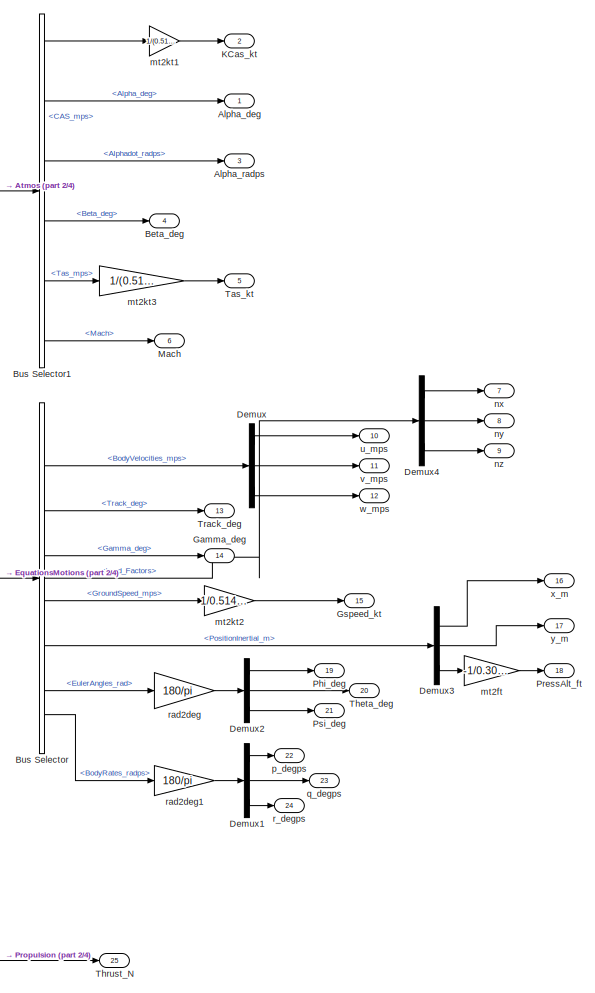
[diagram: root canvas - part 1/4, right side, full height]
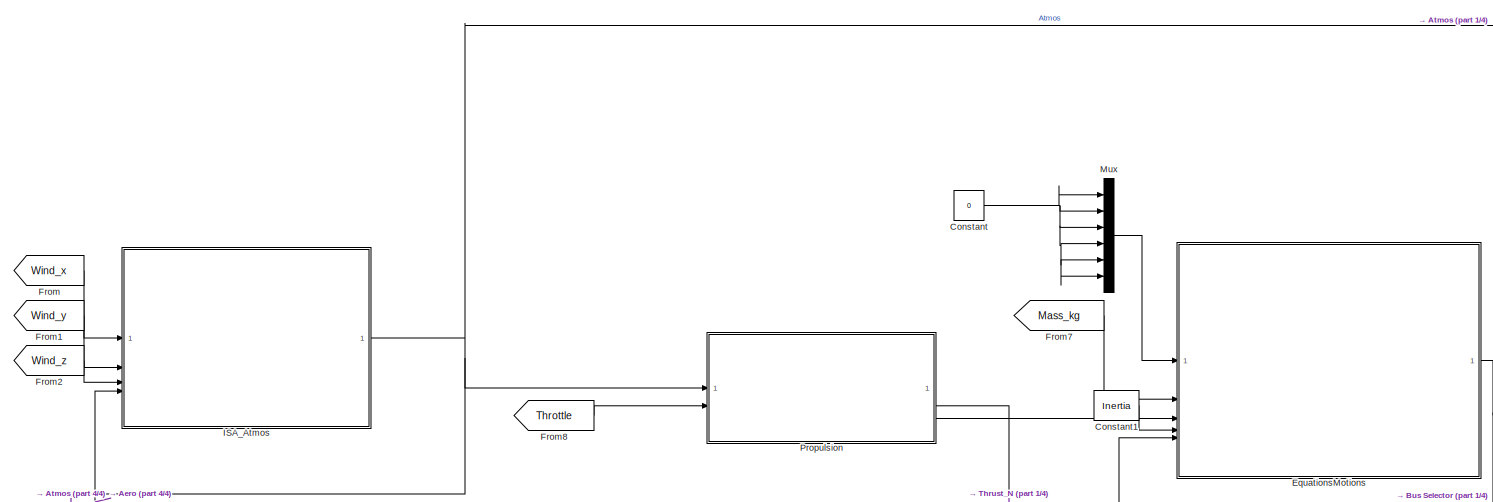
[diagram: root canvas - part 2/4, central region]
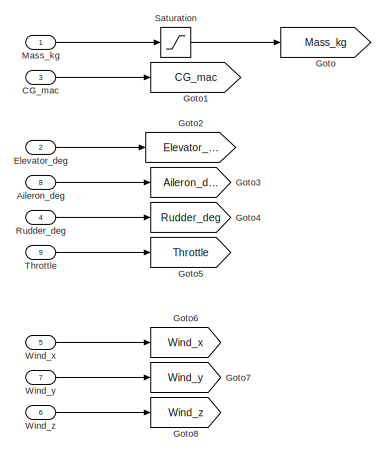
[diagram: root canvas - part 3/4, middle left region]
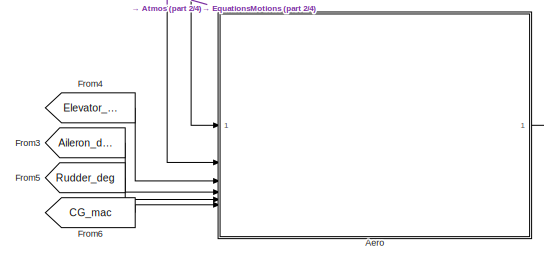
[diagram: root canvas - part 4/4, bottom left region]
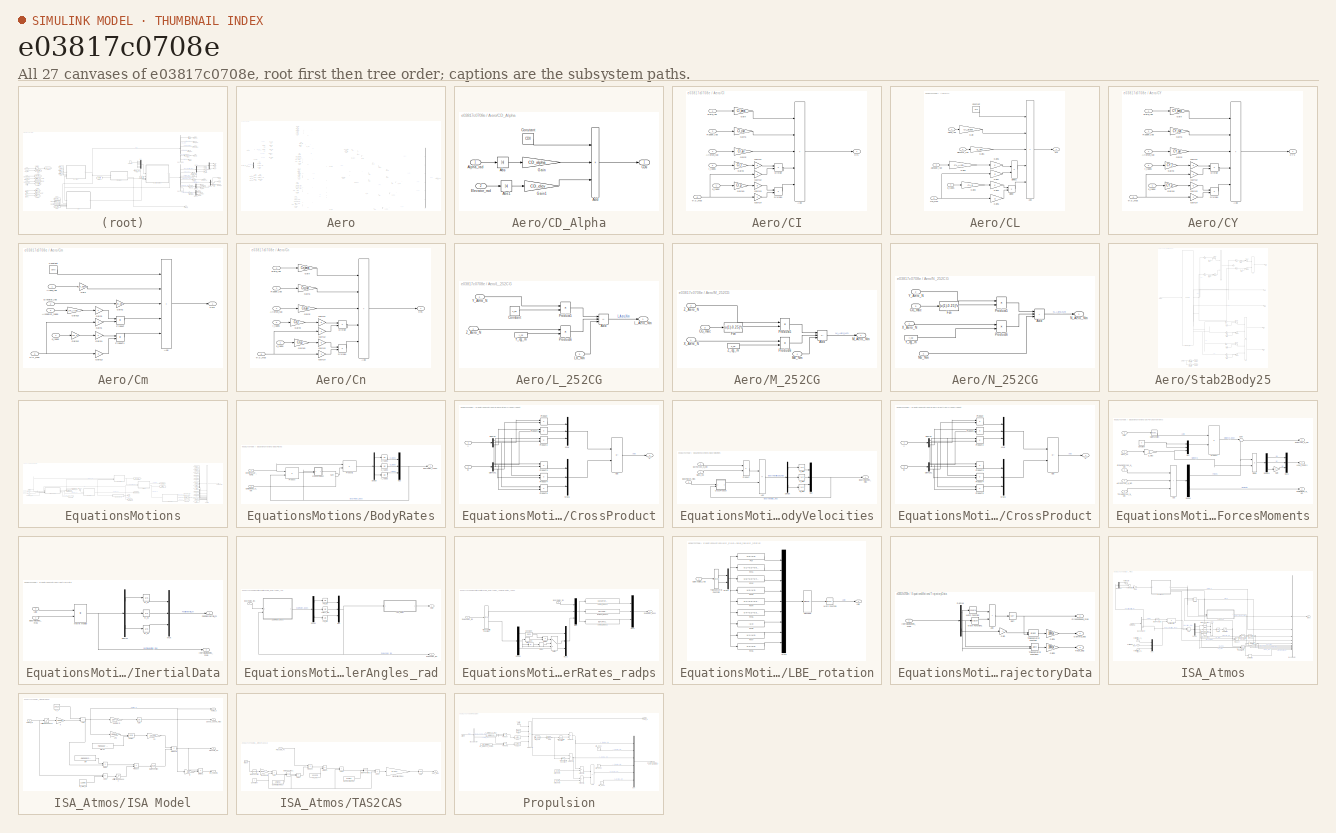
[diagram: thumbnail index - all 27 canvases of the model, root first then tree order]
MODEL slx_e03817c0708e
KIND model
CONFIG AbsTol = auto
CONFIG EnableMultiTasking = off
CONFIG FixedStep = 0.01
CONFIG MaxStep = auto
CONFIG MinStep = auto
CONFIG RelTol = 1e-3
CONFIG SampleTimeConstraint = Unconstrained
CONFIG SolverName = ode1
CONFIG StartTime = 0.0
CONFIG StopTime = 10.0
WORKSPACE source: mxarray member
WORKSPACE op_trim1: opcond.OperatingReport (value not decoded)
WORKSPACE op_trim4: opcond.OperatingReport (value not decoded)
WORKSPACE u_mps = 0
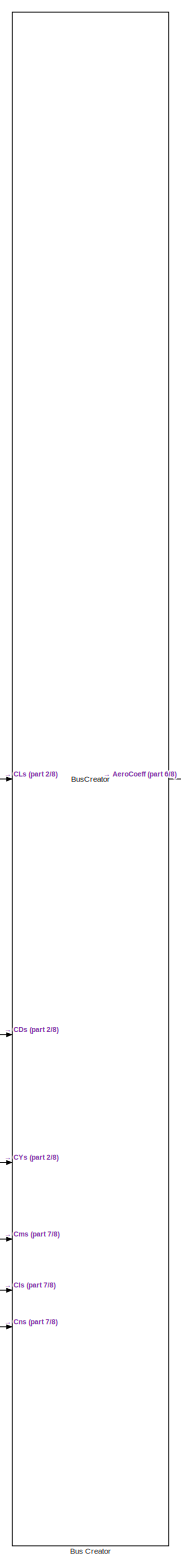
[diagram: Aero - part 1/8, center side, full height]
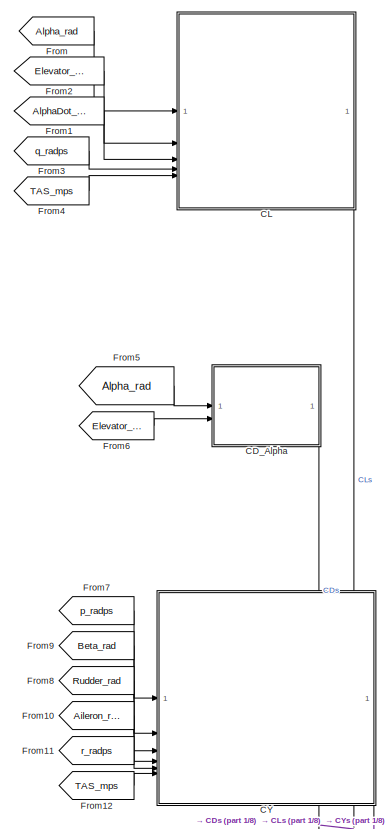
[diagram: Aero - part 2/8, top left region]
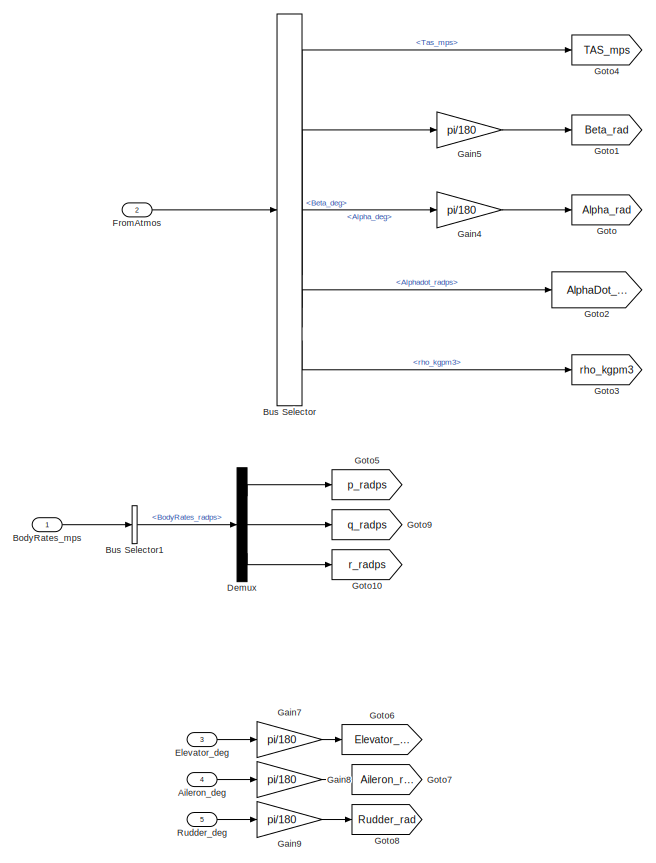
[diagram: Aero - part 3/8, middle left region]
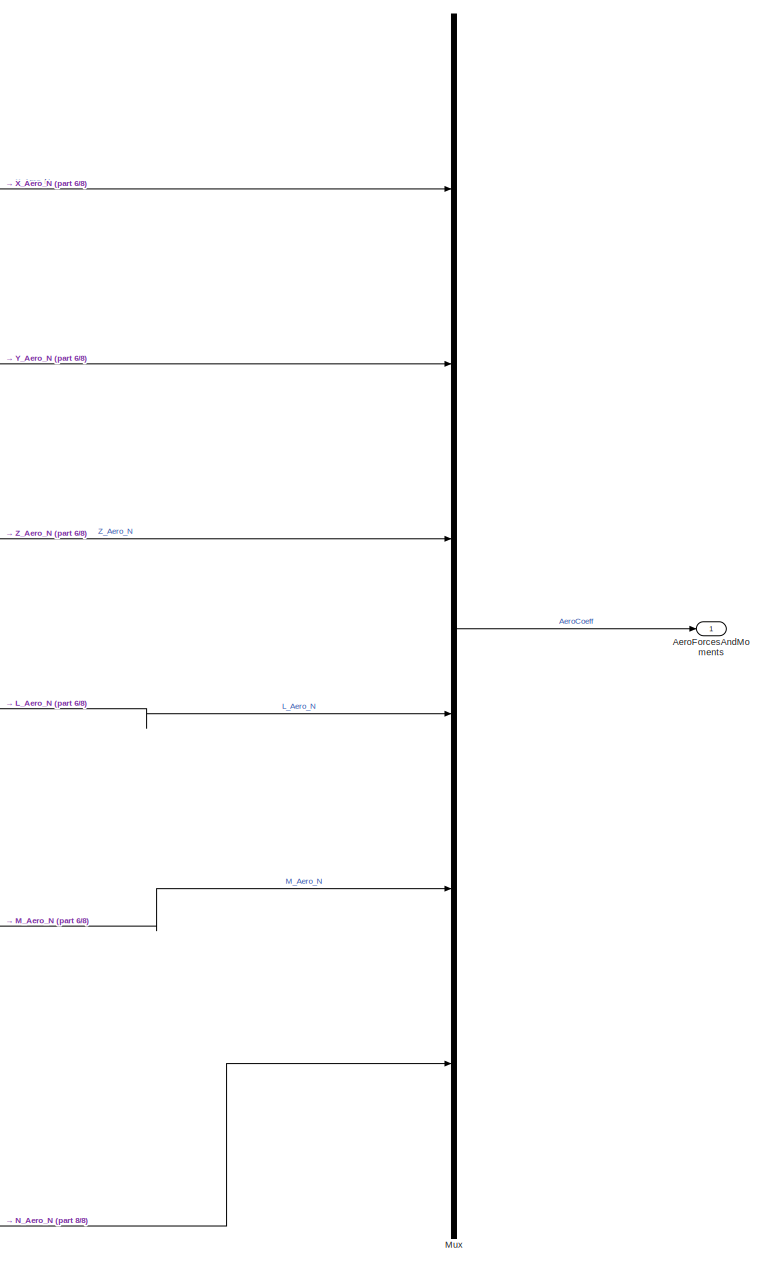
[diagram: Aero - part 4/8, middle right region]
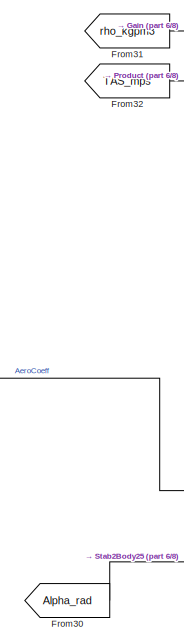
[diagram: Aero - part 5/8, central region]
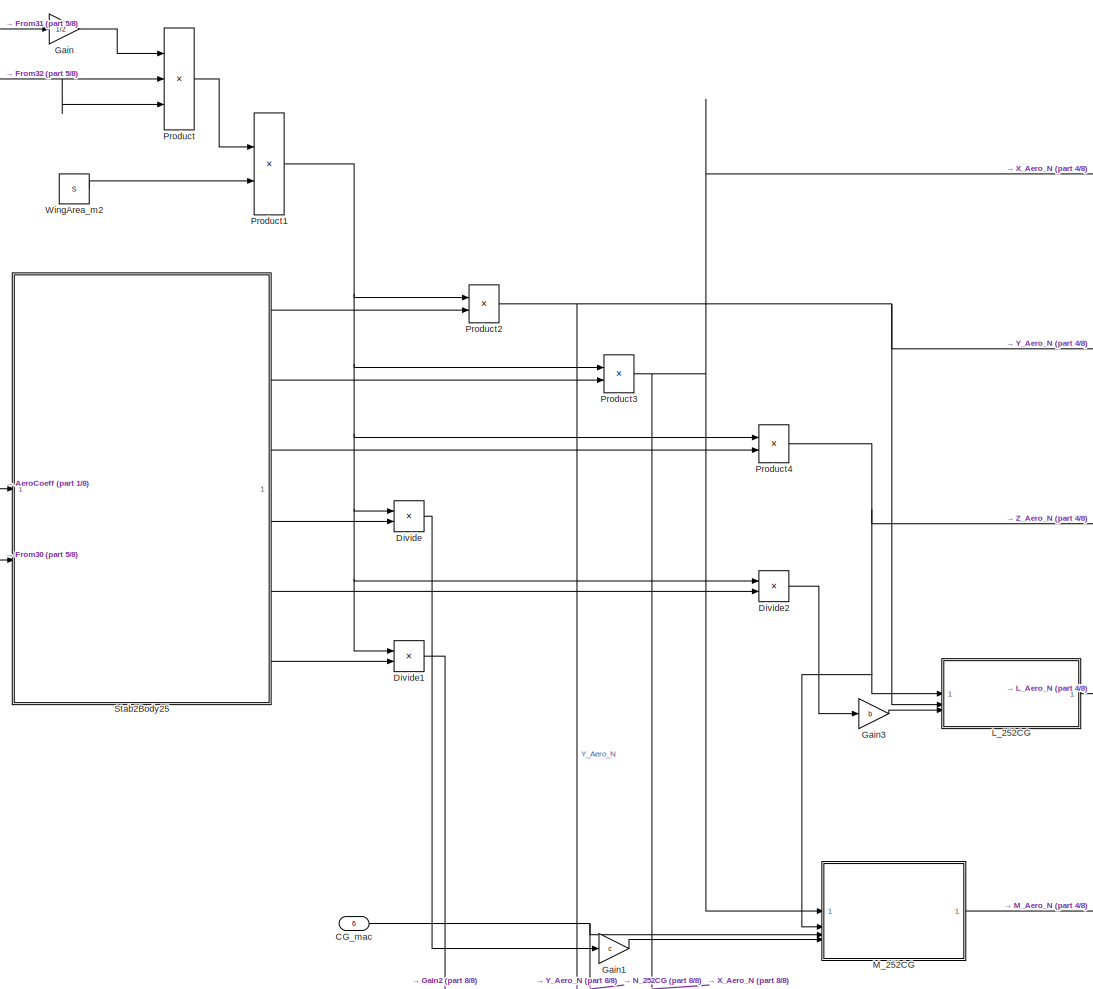
[diagram: Aero - part 6/8, middle right region]
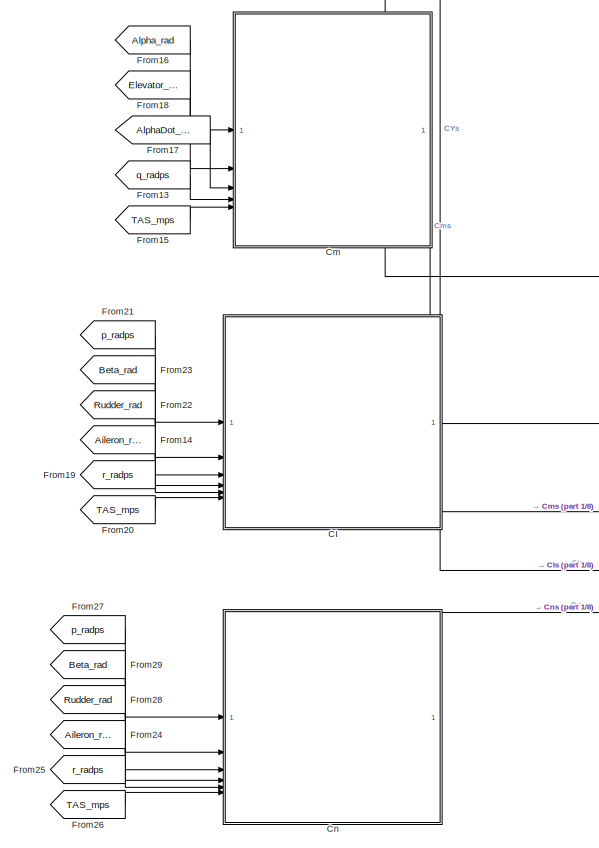
[diagram: Aero - part 7/8, bottom left region]
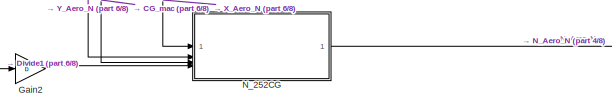
[diagram: Aero - part 8/8, bottom right region]
BLOCK [SubSystem] Aero
BLOCK [Outport] Aero/AeroForcesAndMoments
BLOCK [Inport] Aero/Aileron_deg
  Port = 4
BLOCK [Inport] Aero/BodyRates_mps
BLOCK [BusCreator] Aero/Bus Creator
  DisplayOption = bar
  InheritFromInputs = on
  Inputs = 6
BLOCK [BusSelector] Aero/Bus Selector
  OutputSignals = Tas_mps,Beta_deg,Alpha_deg,Alphadot_radps,rho_kgpm3
BLOCK [BusSelector] Aero/Bus Selector1
  OutputSignals = BodyRates_radps
BLOCK [SubSystem] Aero/CD_Alpha
BLOCK [Abs] Aero/CD_Alpha/Abs
  SaturateOnIntegerOverflow = off
BLOCK [Abs] Aero/CD_Alpha/Abs1
  SaturateOnIntegerOverflow = off
BLOCK [Sum] Aero/CD_Alpha/Add
  IconShape = rectangular
  Inputs = +++
BLOCK [Inport] Aero/CD_Alpha/Alpha_rad
BLOCK [Outport] Aero/CD_Alpha/CDs
BLOCK [Constant] Aero/CD_Alpha/Constant
  Value = CD0
BLOCK [Inport] Aero/CD_Alpha/Elevator_rad
  Port = 2
BLOCK [Gain] Aero/CD_Alpha/Gain
  Gain = CD_alpha
BLOCK [Gain] Aero/CD_Alpha/Gain1
  Gain = CD_elev
BLOCK [Inport] Aero/CG_mac
  Port = 6
BLOCK [SubSystem] Aero/CI
BLOCK [Sum] Aero/CI/Add
  IconShape = rectangular
  Inputs = +++++
BLOCK [Inport] Aero/CI/Aileron_rad
  Port = 4
BLOCK [Inport] Aero/CI/Beta_rad
  Port = 2
BLOCK [Outport] Aero/CI/CIs
BLOCK [Product] Aero/CI/Divide
  Inputs = */
BLOCK [Product] Aero/CI/Divide1
  Inputs = */
BLOCK [Gain] Aero/CI/Gain
  Gain = Cl_beta
BLOCK [Gain] Aero/CI/Gain1
  Gain = Cl_rud
BLOCK [Gain] Aero/CI/Gain10
  Gain = Cl_p
BLOCK [Gain] Aero/CI/Gain11
  Gain = b
BLOCK [Gain] Aero/CI/Gain12
  Gain = 2
BLOCK [Gain] Aero/CI/Gain13
  Gain = b
BLOCK [Gain] Aero/CI/Gain14
  Gain = 2
BLOCK [Gain] Aero/CI/Gain2
  Gain = Cl_ail
BLOCK [Gain] Aero/CI/Gain3
  Gain = Cl_r
BLOCK [Inport] Aero/CI/Rudder_rad
  Port = 3
BLOCK [Inport] Aero/CI/TAS_mps
  Port = 6
BLOCK [Inport] Aero/CI/p_radps
BLOCK [Inport] Aero/CI/r_radps
  Port = 5
BLOCK [SubSystem] Aero/CL
BLOCK [Sum] Aero/CL/Add
  IconShape = rectangular
  Inputs = +++++
BLOCK [Inport] Aero/CL/AlphaDot_rad
  Port = 3
BLOCK [Inport] Aero/CL/Alpha_rad
BLOCK [Outport] Aero/CL/CLs
BLOCK [Constant] Aero/CL/Constant
  Value = CL0
BLOCK [Product] Aero/CL/Divide
  Inputs = */
BLOCK [Product] Aero/CL/Divide1
  Inputs = */
BLOCK [Inport] Aero/CL/Elevator_rad
  Port = 2
BLOCK [Gain] Aero/CL/Gain
  Gain = CL_alpha
BLOCK [Gain] Aero/CL/Gain1
  Gain = CL_elev
BLOCK [Gain] Aero/CL/Gain2
  Gain = CL_AlphaDot
BLOCK [Gain] Aero/CL/Gain3
  Gain = CL_q
BLOCK [Gain] Aero/CL/Gain4
  Gain = c
BLOCK [Gain] Aero/CL/Gain5
  Gain = 2
BLOCK [Gain] Aero/CL/Gain6
  Gain = c
BLOCK [Gain] Aero/CL/Gain7
  Gain = 2
BLOCK [Inport] Aero/CL/TAS_mps
  Port = 5
BLOCK [Inport] Aero/CL/q_radps
  Port = 4
BLOCK [SubSystem] Aero/CY
BLOCK [Sum] Aero/CY/Add
  IconShape = rectangular
  Inputs = +++++
BLOCK [Inport] Aero/CY/Aileron_rad
  Port = 4
BLOCK [Inport] Aero/CY/Beta_rad
  Port = 2
BLOCK [Outport] Aero/CY/CYs
BLOCK [Product] Aero/CY/Divide
  Inputs = */
BLOCK [Product] Aero/CY/Divide1
  Inputs = */
BLOCK [Gain] Aero/CY/Gain
  Gain = CY_beta
BLOCK [Gain] Aero/CY/Gain1
  Gain = CY_rud
BLOCK [Gain] Aero/CY/Gain10
  Gain = CY_p
BLOCK [Gain] Aero/CY/Gain11
  Gain = b
BLOCK [Gain] Aero/CY/Gain12
  Gain = 2
BLOCK [Gain] Aero/CY/Gain13
  Gain = b
BLOCK [Gain] Aero/CY/Gain14
  Gain = 2
BLOCK [Gain] Aero/CY/Gain2
  Gain = CY_ail
BLOCK [Gain] Aero/CY/Gain3
  Gain = CY_r
BLOCK [Inport] Aero/CY/Rudder_rad
  Port = 3
BLOCK [Inport] Aero/CY/TAS_mps
  Port = 6
BLOCK [Inport] Aero/CY/p_radps
BLOCK [Inport] Aero/CY/r_radps
  Port = 5
BLOCK [SubSystem] Aero/Cm
BLOCK [Sum] Aero/Cm/Add
  IconShape = rectangular
  Inputs = +++++
BLOCK [Inport] Aero/Cm/AlphaDot_radps
  Port = 3
BLOCK [Inport] Aero/Cm/Alpha_rad
BLOCK [Outport] Aero/Cm/Cms
BLOCK [Constant] Aero/Cm/Constant
  Value = Cm0
BLOCK [Inport] Aero/Cm/Elevator_rad
  Port = 2
BLOCK [Gain] Aero/Cm/Gain
  Gain = Cm_alpha
BLOCK [Gain] Aero/Cm/Gain1
  Gain = 2
BLOCK [Gain] Aero/Cm/Gain10
  Gain = Cm_AlphaDot
BLOCK [Gain] Aero/Cm/Gain11
  Gain = c
BLOCK [Gain] Aero/Cm/Gain12
  Gain = Cm_q
BLOCK [Gain] Aero/Cm/Gain13
  Gain = 2
BLOCK [Gain] Aero/Cm/Gain2
  Gain = Cm_elev
BLOCK [Gain] Aero/Cm/Gain3
  Gain = c
BLOCK [Product] Aero/Cm/Product
  Inputs = */
BLOCK [Product] Aero/Cm/Product1
  Inputs = */
BLOCK [Inport] Aero/Cm/TAS_mps
  Port = 5
BLOCK [Inport] Aero/Cm/q_radps
  Port = 4
BLOCK [SubSystem] Aero/Cn
BLOCK [Sum] Aero/Cn/Add
  IconShape = rectangular
  Inputs = +++++
BLOCK [Inport] Aero/Cn/Aileron_rad
  Port = 4
BLOCK [Inport] Aero/Cn/Beta_rad
  Port = 2
BLOCK [Outport] Aero/Cn/Cns
BLOCK [Product] Aero/Cn/Divide
  Inputs = */
BLOCK [Product] Aero/Cn/Divide1
  Inputs = */
BLOCK [Gain] Aero/Cn/Gain
  Gain = Cn_beta
BLOCK [Gain] Aero/Cn/Gain1
  Gain = Cn_rud
BLOCK [Gain] Aero/Cn/Gain10
  Gain = Cn_p
BLOCK [Gain] Aero/Cn/Gain11
  Gain = b
BLOCK [Gain] Aero/Cn/Gain12
  Gain = 2
BLOCK [Gain] Aero/Cn/Gain13
  Gain = b
BLOCK [Gain] Aero/Cn/Gain14
  Gain = 2
BLOCK [Gain] Aero/Cn/Gain2
  Gain = Cn_ail
BLOCK [Gain] Aero/Cn/Gain3
  Gain = Cn_r
BLOCK [Inport] Aero/Cn/Rudder_rad
  Port = 3
BLOCK [Inport] Aero/Cn/TAS_mps
  Port = 6
BLOCK [Inport] Aero/Cn/p_radps
BLOCK [Inport] Aero/Cn/r_radps
  Port = 5
BLOCK [Demux] Aero/Demux
  Outputs = 3
BLOCK [Product] Aero/Divide
BLOCK [Product] Aero/Divide1
BLOCK [Product] Aero/Divide2
BLOCK [Inport] Aero/Elevator_deg
  Port = 3
BLOCK [From] Aero/From
  GotoTag = Alpha_rad
BLOCK [From] Aero/From1
  GotoTag = AlphaDot_radps
BLOCK [From] Aero/From10
  GotoTag = Aileron_rad
BLOCK [From] Aero/From11
  GotoTag = r_radps
BLOCK [From] Aero/From12
  GotoTag = TAS_mps
BLOCK [From] Aero/From13
  GotoTag = q_radps
BLOCK [From] Aero/From14
  GotoTag = Aileron_rad
BLOCK [From] Aero/From15
  GotoTag = TAS_mps
BLOCK [From] Aero/From16
  GotoTag = Alpha_rad
BLOCK [From] Aero/From17
  GotoTag = AlphaDot_radps
BLOCK [From] Aero/From18
  GotoTag = Elevator_rad
BLOCK [From] Aero/From19
  GotoTag = r_radps
BLOCK [From] Aero/From2
  GotoTag = Elevator_rad
BLOCK [From] Aero/From20
  GotoTag = TAS_mps
BLOCK [From] Aero/From21
  GotoTag = p_radps
BLOCK [From] Aero/From22
  GotoTag = Rudder_rad
BLOCK [From] Aero/From23
  GotoTag = Beta_rad
BLOCK [From] Aero/From24
  GotoTag = Aileron_rad
BLOCK [From] Aero/From25
  GotoTag = r_radps
BLOCK [From] Aero/From26
  GotoTag = TAS_mps
BLOCK [From] Aero/From27
  GotoTag = p_radps
BLOCK [From] Aero/From28
  GotoTag = Rudder_rad
BLOCK [From] Aero/From29
  GotoTag = Beta_rad
BLOCK [From] Aero/From3
  GotoTag = q_radps
BLOCK [From] Aero/From30
  GotoTag = Alpha_rad
BLOCK [From] Aero/From31
  GotoTag = rho_kgpm3
BLOCK [From] Aero/From32
  GotoTag = TAS_mps
BLOCK [From] Aero/From4
  GotoTag = TAS_mps
BLOCK [From] Aero/From5
  GotoTag = Alpha_rad
BLOCK [From] Aero/From6
  GotoTag = Elevator_rad
BLOCK [From] Aero/From7
  GotoTag = p_radps
BLOCK [From] Aero/From8
  GotoTag = Rudder_rad
BLOCK [From] Aero/From9
  GotoTag = Beta_rad
BLOCK [Inport] Aero/FromAtmos
  Port = 2
BLOCK [Gain] Aero/Gain
  Gain = 1/2
BLOCK [Gain] Aero/Gain1
  Gain = c
BLOCK [Gain] Aero/Gain2
  Gain = b
BLOCK [Gain] Aero/Gain3
  Gain = b
BLOCK [Gain] Aero/Gain4
  Gain = pi/180
BLOCK [Gain] Aero/Gain5
  Gain = pi/180
BLOCK [Gain] Aero/Gain7
  Gain = pi/180
BLOCK [Gain] Aero/Gain8
  Gain = pi/180
BLOCK [Gain] Aero/Gain9
  Gain = pi/180
BLOCK [Goto] Aero/Goto
  GotoTag = Alpha_rad
BLOCK [Goto] Aero/Goto1
  GotoTag = Beta_rad
BLOCK [Goto] Aero/Goto10
  GotoTag = r_radps
BLOCK [Goto] Aero/Goto2
  GotoTag = AlphaDot_radps
BLOCK [Goto] Aero/Goto3
  GotoTag = rho_kgpm3
BLOCK [Goto] Aero/Goto4
  GotoTag = TAS_mps
BLOCK [Goto] Aero/Goto5
  GotoTag = p_radps
BLOCK [Goto] Aero/Goto6
  GotoTag = Elevator_rad
BLOCK [Goto] Aero/Goto7
  GotoTag = Aileron_rad
BLOCK [Goto] Aero/Goto8
  GotoTag = Rudder_rad
BLOCK [Goto] Aero/Goto9
  GotoTag = q_radps
BLOCK [SubSystem] Aero/L_252CG
BLOCK [Sum] Aero/L_252CG/Add
  IconShape = rectangular
  Inputs = --+
BLOCK [Constant] Aero/L_252CG/Constant
  Value = z_cg
BLOCK [Outport] Aero/L_252CG/L_Aero_Nm
BLOCK [Inport] Aero/L_252CG/Lb_Nm
  Port = 3
BLOCK [Product] Aero/L_252CG/Product5
BLOCK [Product] Aero/L_252CG/Product6
BLOCK [Inport] Aero/L_252CG/Y_Aero_N
  Port = 2
BLOCK [Constant] Aero/L_252CG/Y_cg_m
  Value = y_cg
BLOCK [Inport] Aero/L_252CG/Z_Aero_N
BLOCK [SubSystem] Aero/M_252CG
BLOCK [Sum] Aero/M_252CG/Add
  IconShape = rectangular
  Inputs = -++
BLOCK [Inport] Aero/M_252CG/CG_mac
  Port = 3
BLOCK [Fcn] Aero/M_252CG/Fcn
  Expr = (u(1)-0.25)*c
BLOCK [Outport] Aero/M_252CG/M_Aero_Nm
BLOCK [Inport] Aero/M_252CG/Mb_Nm
  Port = 4
BLOCK [Product] Aero/M_252CG/Product5
BLOCK [Product] Aero/M_252CG/Product6
BLOCK [Inport] Aero/M_252CG/X_Aero_N
BLOCK [Inport] Aero/M_252CG/Z_Aero_N
  Port = 2
BLOCK [Constant] Aero/M_252CG/Z_cg_m
  Value = z_cg
BLOCK [Mux] Aero/Mux
  DisplayOption = bar
  Inputs = 6
BLOCK [SubSystem] Aero/N_252CG
BLOCK [Sum] Aero/N_252CG/Add
  IconShape = rectangular
  Inputs = +++
BLOCK [Inport] Aero/N_252CG/CG_mac
  Port = 3
BLOCK [Fcn] Aero/N_252CG/Fcn
  Expr = (u(1)-0.25)*c
BLOCK [Outport] Aero/N_252CG/N_Aero_Nm
BLOCK [Inport] Aero/N_252CG/Nb_Nm
  Port = 4
BLOCK [Product] Aero/N_252CG/Product5
BLOCK [Product] Aero/N_252CG/Product6
BLOCK [Inport] Aero/N_252CG/X_Aero_N
BLOCK [Inport] Aero/N_252CG/Y_Aero_N
  Port = 2
BLOCK [Constant] Aero/N_252CG/Y_cg_m
  Value = y_cg
BLOCK [Product] Aero/Product
  Inputs = 3
BLOCK [Product] Aero/Product1
BLOCK [Product] Aero/Product2
BLOCK [Product] Aero/Product3
BLOCK [Product] Aero/Product4
BLOCK [Inport] Aero/Rudder_deg
  Port = 5
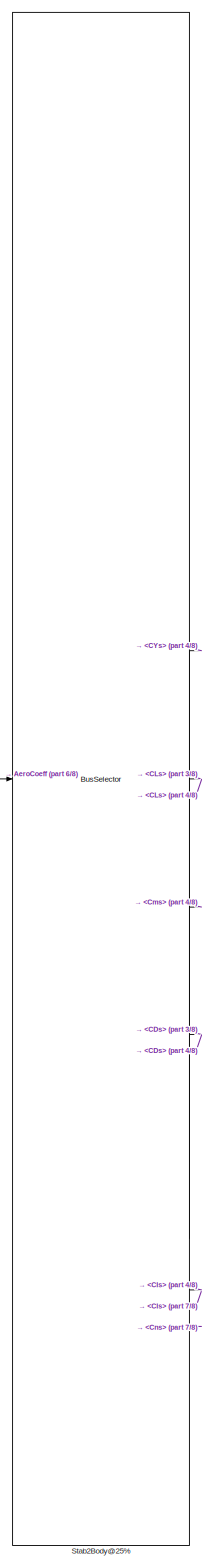
[diagram: Aero/Stab2Body25 - part 1/8, left side, full height]
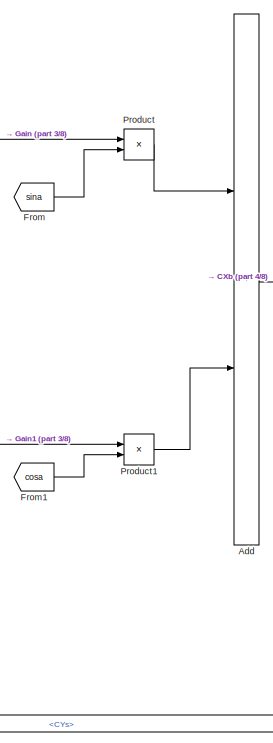
[diagram: Aero/Stab2Body25 - part 2/8, top center region]
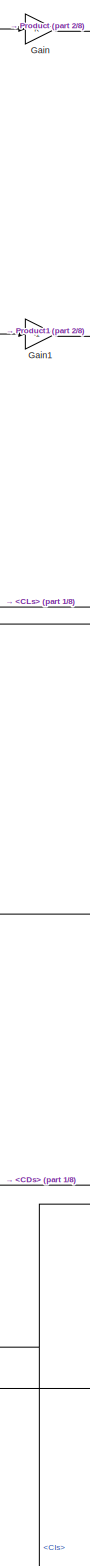
[diagram: Aero/Stab2Body25 - part 3/8, central region]
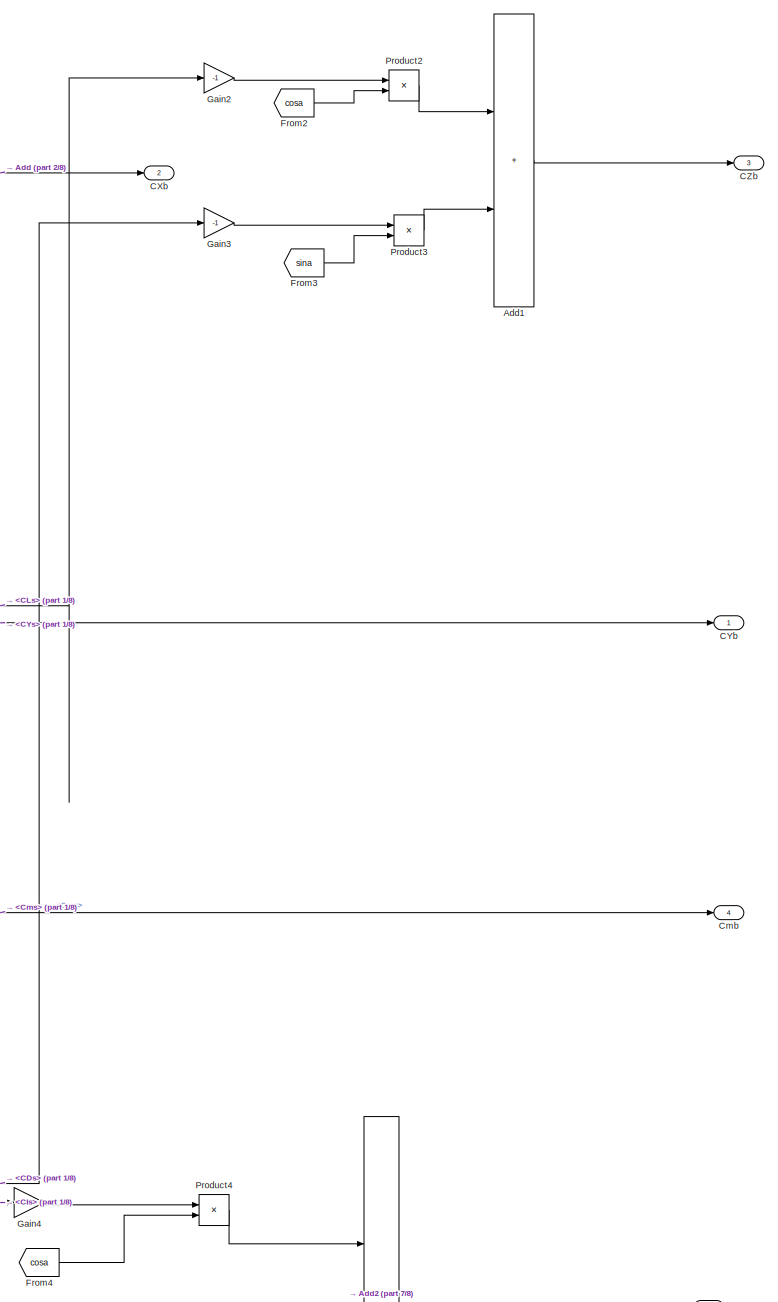
[diagram: Aero/Stab2Body25 - part 4/8, middle right region]
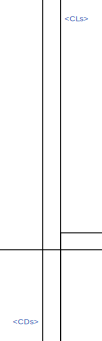
[diagram: Aero/Stab2Body25 - part 5/8, top center region]
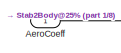
[diagram: Aero/Stab2Body25 - part 6/8, middle left region]
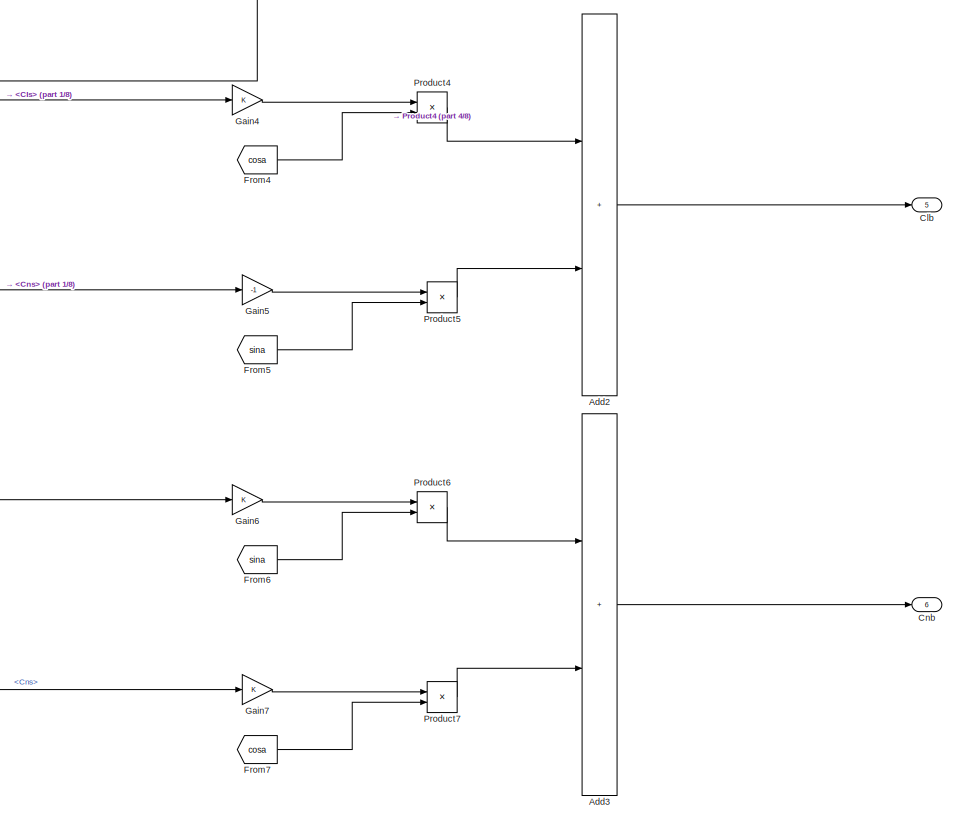
[diagram: Aero/Stab2Body25 - part 7/8, bottom right region]
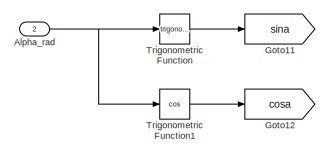
[diagram: Aero/Stab2Body25 - part 8/8, bottom left region]
BLOCK [SubSystem] Aero/Stab2Body25
BLOCK [Sum] Aero/Stab2Body25/Add
  IconShape = rectangular
BLOCK [Sum] Aero/Stab2Body25/Add1
  IconShape = rectangular
BLOCK [Sum] Aero/Stab2Body25/Add2
  IconShape = rectangular
BLOCK [Sum] Aero/Stab2Body25/Add3
  IconShape = rectangular
BLOCK [Inport] Aero/Stab2Body25/AeroCoeff
BLOCK [Inport] Aero/Stab2Body25/Alpha_rad
  Port = 2
BLOCK [Outport] Aero/Stab2Body25/CXb
  Port = 2
BLOCK [Outport] Aero/Stab2Body25/CYb
BLOCK [Outport] Aero/Stab2Body25/CZb
  Port = 3
BLOCK [Outport] Aero/Stab2Body25/Clb
  Port = 5
BLOCK [Outport] Aero/Stab2Body25/Cmb
  Port = 4
BLOCK [Outport] Aero/Stab2Body25/Cnb
  Port = 6
BLOCK [From] Aero/Stab2Body25/From
  GotoTag = sina
BLOCK [From] Aero/Stab2Body25/From1
  GotoTag = cosa
BLOCK [From] Aero/Stab2Body25/From2
  GotoTag = cosa
BLOCK [From] Aero/Stab2Body25/From3
  GotoTag = sina
BLOCK [From] Aero/Stab2Body25/From4
  GotoTag = cosa
BLOCK [From] Aero/Stab2Body25/From5
  GotoTag = sina
BLOCK [From] Aero/Stab2Body25/From6
  GotoTag = sina
BLOCK [From] Aero/Stab2Body25/From7
  GotoTag = cosa
BLOCK [Gain] Aero/Stab2Body25/Gain
BLOCK [Gain] Aero/Stab2Body25/Gain1
  Gain = -1
BLOCK [Gain] Aero/Stab2Body25/Gain2
  Gain = -1
BLOCK [Gain] Aero/Stab2Body25/Gain3
  Gain = -1
BLOCK [Gain] Aero/Stab2Body25/Gain4
BLOCK [Gain] Aero/Stab2Body25/Gain5
  Gain = -1
BLOCK [Gain] Aero/Stab2Body25/Gain6
BLOCK [Gain] Aero/Stab2Body25/Gain7
BLOCK [Goto] Aero/Stab2Body25/Goto11
  GotoTag = sina
BLOCK [Goto] Aero/Stab2Body25/Goto12
  GotoTag = cosa
BLOCK [Product] Aero/Stab2Body25/Product
BLOCK [Product] Aero/Stab2Body25/Product1
BLOCK [Product] Aero/Stab2Body25/Product2
BLOCK [Product] Aero/Stab2Body25/Product3
BLOCK [Product] Aero/Stab2Body25/Product4
BLOCK [Product] Aero/Stab2Body25/Product5
BLOCK [Product] Aero/Stab2Body25/Product6
BLOCK [Product] Aero/Stab2Body25/Product7
BLOCK [BusSelector] Aero/Stab2Body25/Stab2Body@25%
  OutputSignals = CLs,CDs,CYs,Cms,CIs,Cns
BLOCK [Trigonometry] Aero/Stab2Body25/Trigonometric Function
BLOCK [Trigonometry] Aero/Stab2Body25/Trigonometric Function1
  Operator = cos
BLOCK [Constant] Aero/WingArea_m2
  Value = S
BLOCK [Inport] Aileron_deg
  Port = 8
BLOCK [Outport] Alpha_deg
BLOCK [Outport] Alpha_radps
  Port = 3
BLOCK [Outport] Beta_deg
  Port = 4
BLOCK [BusSelector] Bus Selector
  OutputSignals = Load_Factors,BodyVelocities_mps,Track_deg,Gamma_deg,GroundSpeed_mps,PositionInertial_m,EulerAngles_rad,BodyRates_radps
BLOCK [BusSelector] Bus Selector1
  OutputSignals = CAS_mps,Alpha_deg,Alphadot_radps,Beta_deg,Tas_mps,Mach
BLOCK [Inport] CG_mac
  Port = 3
BLOCK [Constant] Constant
  Value = 0
BLOCK [Constant] Constant1
  Value = Inertia
BLOCK [Demux] Demux
  Outputs = 3
BLOCK [Demux] Demux1
  Outputs = 3
BLOCK [Demux] Demux2
  Outputs = 3
BLOCK [Demux] Demux3
  Outputs = 3
BLOCK [Demux] Demux4
  Outputs = 3
BLOCK [Inport] Elevator_deg
  Port = 2
BLOCK [SubSystem] EquationsMotions
BLOCK [Inport] EquationsMotions/AeroForces_N_Nm
  Port = 5
BLOCK [SubSystem] EquationsMotions/BodyRates
BLOCK [Outport] EquationsMotions/BodyRates/BodyRates_radps
BLOCK [SubSystem] EquationsMotions/BodyRates/CrossProduct
BLOCK [Inport] EquationsMotions/BodyRates/CrossProduct/A
BLOCK [Sum] EquationsMotions/BodyRates/CrossProduct/Add
  IconShape = rectangular
  Inputs = +-
BLOCK [Inport] EquationsMotions/BodyRates/CrossProduct/B
  Port = 2
BLOCK [Outport] EquationsMotions/BodyRates/CrossProduct/C
BLOCK [Demux] EquationsMotions/BodyRates/CrossProduct/Demux
  Outputs = 3
BLOCK [Demux] EquationsMotions/BodyRates/CrossProduct/Demux1
  Outputs = 3
BLOCK [Mux] EquationsMotions/BodyRates/CrossProduct/Mux
  DisplayOption = bar
  Inputs = 3
BLOCK [Mux] EquationsMotions/BodyRates/CrossProduct/Mux1
  DisplayOption = bar
  Inputs = 3
BLOCK [Product] EquationsMotions/BodyRates/CrossProduct/Product
BLOCK [Product] EquationsMotions/BodyRates/CrossProduct/Product1
BLOCK [Product] EquationsMotions/BodyRates/CrossProduct/Product2
BLOCK [Product] EquationsMotions/BodyRates/CrossProduct/Product3
BLOCK [Product] EquationsMotions/BodyRates/CrossProduct/Product4
BLOCK [Product] EquationsMotions/BodyRates/CrossProduct/Product5
BLOCK [Demux] EquationsMotions/BodyRates/Demux
  Outputs = 3
BLOCK [Inport] EquationsMotions/BodyRates/ExtMoments_N_Nm
  Port = 2
BLOCK [Inport] EquationsMotions/BodyRates/InertiaTensor_kgm2
BLOCK [Mux] EquationsMotions/BodyRates/Mux
  DisplayOption = bar
  Inputs = 3
BLOCK [Product] EquationsMotions/BodyRates/Product
  Multiplication = Matrix(*)
BLOCK [Product] EquationsMotions/BodyRates/Product1
  Inputs = /*
  Multiplication = Matrix(*)
BLOCK [Sum] EquationsMotions/BodyRates/Sum
  Inputs = -+
BLOCK [Integrator] EquationsMotions/BodyRates/p_radps
BLOCK [Integrator] EquationsMotions/BodyRates/q_radps
BLOCK [Integrator] EquationsMotions/BodyRates/r_radps
BLOCK [Goto] EquationsMotions/BodyRates_radps
  GotoTag = BodyRates_radps
BLOCK [SubSystem] EquationsMotions/BodyVelocities
BLOCK [Sum] EquationsMotions/BodyVelocities/Add
  IconShape = rectangular
  Inputs = +-
BLOCK [Inport] EquationsMotions/BodyVelocities/BodyRates_mps
  Port = 3
BLOCK [Outport] EquationsMotions/BodyVelocities/BodyVelocities_mps
BLOCK [SubSystem] EquationsMotions/BodyVelocities/CrossProduct
BLOCK [Inport] EquationsMotions/BodyVelocities/CrossProduct/A
BLOCK [Sum] EquationsMotions/BodyVelocities/CrossProduct/Add
  IconShape = rectangular
  Inputs = +-
BLOCK [Inport] EquationsMotions/BodyVelocities/CrossProduct/B
  Port = 2
BLOCK [Outport] EquationsMotions/BodyVelocities/CrossProduct/C
BLOCK [Demux] EquationsMotions/BodyVelocities/CrossProduct/Demux
  Outputs = 3
BLOCK [Demux] EquationsMotions/BodyVelocities/CrossProduct/Demux1
  Outputs = 3
BLOCK [Mux] EquationsMotions/BodyVelocities/CrossProduct/Mux
  DisplayOption = bar
  Inputs = 3
BLOCK [Mux] EquationsMotions/BodyVelocities/CrossProduct/Mux1
  DisplayOption = bar
  Inputs = 3
BLOCK [Product] EquationsMotions/BodyVelocities/CrossProduct/Product
BLOCK [Product] EquationsMotions/BodyVelocities/CrossProduct/Product1
BLOCK [Product] EquationsMotions/BodyVelocities/CrossProduct/Product2
BLOCK [Product] EquationsMotions/BodyVelocities/CrossProduct/Product3
BLOCK [Product] EquationsMotions/BodyVelocities/CrossProduct/Product4
BLOCK [Product] EquationsMotions/BodyVelocities/CrossProduct/Product5
BLOCK [Demux] EquationsMotions/BodyVelocities/Demux
  Outputs = 3
BLOCK [Inport] EquationsMotions/BodyVelocities/ExtForces_N_Nm
  Port = 2
BLOCK [Inport] EquationsMotions/BodyVelocities/Mass_KG
BLOCK [Mux] EquationsMotions/BodyVelocities/Mux
  DisplayOption = bar
  Inputs = 3
BLOCK [Product] EquationsMotions/BodyVelocities/Product
  Inputs = */
BLOCK [Integrator] EquationsMotions/BodyVelocities/u_mps
BLOCK [Integrator] EquationsMotions/BodyVelocities/v_mps
BLOCK [Integrator] EquationsMotions/BodyVelocities/w_mps
BLOCK [Goto] EquationsMotions/BodyVelocities_mps
  GotoTag = BodyVelocities_mps
BLOCK [BusCreator] EquationsMotions/Bus Creator
  DisplayOption = bar
  InheritFromInputs = on
  Inputs = 12
BLOCK [Outport] EquationsMotions/EqMotions_Output
BLOCK [Goto] EquationsMotions/EulerAngles_rad
  GotoTag = EulerAngles_rad
BLOCK [SubSystem] EquationsMotions/ExtForcesMoments
BLOCK [Sum] EquationsMotions/ExtForcesMoments/Add
  IconShape = rectangular
  Inputs = +++
BLOCK [Inport] EquationsMotions/ExtForcesMoments/AeroForces_N_Nm
  Port = 4
BLOCK [Constant] EquationsMotions/ExtForcesMoments/Constant
  Value = 0
BLOCK [Demux] EquationsMotions/ExtForcesMoments/Demux
  Outputs = 2
BLOCK [Demux] EquationsMotions/ExtForcesMoments/Demux1
  Outputs = 3
BLOCK [Product] EquationsMotions/ExtForcesMoments/Divide
  Inputs = */
  Multiplication = Matrix(*)
BLOCK [Outport] EquationsMotions/ExtForcesMoments/ExtForces_N_Nm
BLOCK [Outport] EquationsMotions/ExtForcesMoments/ExtMoments_N_Nm
  Port = 2
BLOCK [Gain] EquationsMotions/ExtForcesMoments/Gain
  Gain = -1
BLOCK [Inport] EquationsMotions/ExtForcesMoments/GroundForces_N_Nm
  Port = 3
BLOCK [Inport] EquationsMotions/ExtForcesMoments/LBE
BLOCK [Outport] EquationsMotions/ExtForcesMoments/Load_Factors
  Port = 3
BLOCK [Inport] EquationsMotions/ExtForcesMoments/Mass_kg
  Port = 2
BLOCK [Math] EquationsMotions/ExtForcesMoments/Math Function
  Operator = transpose
BLOCK [Mux] EquationsMotions/ExtForcesMoments/Mux
  DisplayOption = bar
  Inputs = 3
BLOCK [Mux] EquationsMotions/ExtForcesMoments/Mux1
  DisplayOption = bar
  Inputs = 3
BLOCK [Product] EquationsMotions/ExtForcesMoments/Product
  Multiplication = Matrix(*)
BLOCK [Sum] EquationsMotions/ExtForcesMoments/Sum
  Inputs = |++
BLOCK [Inport] EquationsMotions/ExtForcesMoments/ThrustForces_N_Nm
  Port = 5
BLOCK [Gain] EquationsMotions/ExtForcesMoments/g_mps
  Gain = g
BLOCK [Goto] EquationsMotions/ExtForces_N_Nm
  GotoTag = ExtForces_N_Nm
BLOCK [Goto] EquationsMotions/ExtMoments_N_Nm
  GotoTag = ExtMoments_N_Nm
BLOCK [From] EquationsMotions/From
  GotoTag = ExtForces_N_Nm
BLOCK [From] EquationsMotions/From1
  GotoTag = ExtMoments_N_Nm
BLOCK [From] EquationsMotions/From10
  GotoTag = Track_deg
BLOCK [From] EquationsMotions/From11
  GotoTag = LBE
BLOCK [From] EquationsMotions/From2
  GotoTag = Load_Factors
BLOCK [From] EquationsMotions/From3
  GotoTag = BodyVelocities_mps
BLOCK [From] EquationsMotions/From4
  GotoTag = BodyRates_radps
BLOCK [From] EquationsMotions/From5
  GotoTag = EulerAngles_rad
BLOCK [From] EquationsMotions/From6
  GotoTag = PositionInertial_m
BLOCK [From] EquationsMotions/From7
  GotoTag = InertialVelocities_mps
BLOCK [From] EquationsMotions/From8
  GotoTag = GroundSpeed_mps
BLOCK [From] EquationsMotions/From9
  GotoTag = Gamma_deg
BLOCK [Goto] EquationsMotions/Gamma_deg
  GotoTag = Gamma_deg
BLOCK [Inport] EquationsMotions/GroundForces_N_Nm
BLOCK [Goto] EquationsMotions/GroundSpeed_mps
  GotoTag = GroundSpeed_mps
BLOCK [Inport] EquationsMotions/InertiaTensor_kgm2
  Port = 4
BLOCK [SubSystem] EquationsMotions/InertialData
BLOCK [Inport] EquationsMotions/InertialData/BodyVelocities_mps
BLOCK [Demux] EquationsMotions/InertialData/Demux
  Outputs = 3
BLOCK [Outport] EquationsMotions/InertialData/InertialVelocities_mps
  Port = 2
BLOCK [Inport] EquationsMotions/InertialData/LBE
  Port = 2
BLOCK [Product] EquationsMotions/InertialData/Matrix Multiply
  Multiplication = Matrix(*)
BLOCK [Mux] EquationsMotions/InertialData/Mux
  DisplayOption = bar
  Inputs = 3
BLOCK [Outport] EquationsMotions/InertialData/PositionInertial_m
BLOCK [Integrator] EquationsMotions/InertialData/XI_m
BLOCK [Integrator] EquationsMotions/InertialData/YI_m
BLOCK [Integrator] EquationsMotions/InertialData/ZI_m
BLOCK [Goto] EquationsMotions/InertialVelocities_mps
  GotoTag = InertialVelocities_mps
BLOCK [Goto] EquationsMotions/LBE
  GotoTag = LBE
BLOCK [SubSystem] EquationsMotions/LBE_EulerAngles_rad
BLOCK [Inport] EquationsMotions/LBE_EulerAngles_rad/BodyRates_rps
BLOCK [Demux] EquationsMotions/LBE_EulerAngles_rad/Demux
  Outputs = 3
BLOCK [Outport] EquationsMotions/LBE_EulerAngles_rad/EulerAngles_rad
  Port = 2
BLOCK [SubSystem] EquationsMotions/LBE_EulerAngles_rad/EulerRates_radps
BLOCK [Abs] EquationsMotions/LBE_EulerAngles_rad/EulerRates_radps/Abs
  SaturateOnIntegerOverflow = off
BLOCK [Inport] EquationsMotions/LBE_EulerAngles_rad/EulerRates_radps/BodyRates_rps
BLOCK [Constant] EquationsMotions/LBE_EulerAngles_rad/EulerRates_radps/Constant
  Value = 0.001
BLOCK [Demux] EquationsMotions/LBE_EulerAngles_rad/EulerRates_radps/Demux
  Outputs = 3
BLOCK [Product] EquationsMotions/LBE_EulerAngles_rad/EulerRates_radps/Divide
  Inputs = **
BLOCK [Inport] EquationsMotions/LBE_EulerAngles_rad/EulerRates_radps/EulerAngles_rad
  Port = 2
BLOCK [Outport] EquationsMotions/LBE_EulerAngles_rad/EulerRates_radps/EulerRates_radps
BLOCK [Mux] EquationsMotions/LBE_EulerAngles_rad/EulerRates_radps/Mux
  DisplayOption = bar
  Inputs = 3
BLOCK [Mux] EquationsMotions/LBE_EulerAngles_rad/EulerRates_radps/Mux1
  DisplayOption = bar
  Inputs = 3
BLOCK [Mux] EquationsMotions/LBE_EulerAngles_rad/EulerRates_radps/Mux2
  DisplayOption = bar
  Inputs = 3
BLOCK [Relay] EquationsMotions/LBE_EulerAngles_rad/EulerRates_radps/Relay
  OffOutputValue = 1
  OffSwitchValue = 0
  OnOutputValue = 0
  OnSwitchValue = 0.001
BLOCK [Signum] EquationsMotions/LBE_EulerAngles_rad/EulerRates_radps/Sign
BLOCK [Switch] EquationsMotions/LBE_EulerAngles_rad/EulerRates_radps/Switch
  Criteria = u2 > Threshold
  InputSameDT = off
  SaturateOnIntegerOverflow = off
BLOCK [Trigonometry] EquationsMotions/LBE_EulerAngles_rad/EulerRates_radps/Trigonometric Function
  Operator = sincos
BLOCK [Fcn] EquationsMotions/LBE_EulerAngles_rad/EulerRates_radps/phidot_radps2
  Expr = u(1)+u(2)*u(4)*(u(5)/u(8))+u(3)*u(7)*(u(5)/u(8))
BLOCK [Fcn] EquationsMotions/LBE_EulerAngles_rad/EulerRates_radps/psidot_radps2
  Expr = (u(2)*u(4)+u(3)*u(7))/u(8)
BLOCK [Fcn] EquationsMotions/LBE_EulerAngles_rad/EulerRates_radps/thetadot_radps2
  Expr = u(2)*u(7)-u(3)*u(4)
BLOCK [Outport] EquationsMotions/LBE_EulerAngles_rad/LBE
BLOCK [SubSystem] EquationsMotions/LBE_EulerAngles_rad/LBE_rotation
BLOCK [Inport] EquationsMotions/LBE_EulerAngles_rad/LBE_rotation/EulerAngles_rad
BLOCK [Fcn] EquationsMotions/LBE_EulerAngles_rad/LBE_rotation/Fcn
  Expr = u(5)*u(6)
BLOCK [Fcn] EquationsMotions/LBE_EulerAngles_rad/LBE_rotation/Fcn1
  Expr = u(1)*u(2)*u(6)-u(4)*u(3)
BLOCK [Fcn] EquationsMotions/LBE_EulerAngles_rad/LBE_rotation/Fcn2
  Expr = u(6)*u(2)*u(4)+u(1)*u(3)
BLOCK [Fcn] EquationsMotions/LBE_EulerAngles_rad/LBE_rotation/Fcn3
  Expr = u(5)*u(3)
BLOCK [Fcn] EquationsMotions/LBE_EulerAngles_rad/LBE_rotation/Fcn4
  Expr = u(1)*u(2)*u(3)+u(4)*u(6)
BLOCK [Fcn] EquationsMotions/LBE_EulerAngles_rad/LBE_rotation/Fcn5
  Expr = u(4)*u(2)*u(3)-u(1)*u(6)
BLOCK [Fcn] EquationsMotions/LBE_EulerAngles_rad/LBE_rotation/Fcn6
  Expr = u(4)*u(5)
BLOCK [Fcn] EquationsMotions/LBE_EulerAngles_rad/LBE_rotation/Fcn7
  Expr = u(1)*u(5)
BLOCK [Fcn] EquationsMotions/LBE_EulerAngles_rad/LBE_rotation/Fcn8
  Expr = -u(2)
BLOCK [Outport] EquationsMotions/LBE_EulerAngles_rad/LBE_rotation/LBE
BLOCK [Math] EquationsMotions/LBE_EulerAngles_rad/LBE_rotation/Math Function
  Operator = transpose
BLOCK [Mux] EquationsMotions/LBE_EulerAngles_rad/LBE_rotation/Mux1
  DisplayOption = bar
  Inputs = 2
BLOCK [Mux] EquationsMotions/LBE_EulerAngles_rad/LBE_rotation/Mux2
  DisplayOption = bar
  Inputs = 9
BLOCK [Reshape] EquationsMotions/LBE_EulerAngles_rad/LBE_rotation/Reshape
  OutputDimensionality = Customize
  OutputDimensions = [3,3]
BLOCK [Trigonometry] EquationsMotions/LBE_EulerAngles_rad/LBE_rotation/Trigonometric Function
  Operator = sincos
BLOCK [Mux] EquationsMotions/LBE_EulerAngles_rad/Mux
  DisplayOption = bar
  Inputs = 3
BLOCK [Integrator] EquationsMotions/LBE_EulerAngles_rad/PHI_rad
BLOCK [Integrator] EquationsMotions/LBE_EulerAngles_rad/PSI_rad
BLOCK [Integrator] EquationsMotions/LBE_EulerAngles_rad/THETA_rad
BLOCK [Goto] EquationsMotions/Load_Factors
  GotoTag = Load_Factors
BLOCK [Inport] EquationsMotions/Mass_kg
  Port = 2
BLOCK [Goto] EquationsMotions/PositionInertial_m
  GotoTag = PositionInertial_m
BLOCK [Inport] EquationsMotions/ThrustForces_N_Nm
  Port = 3
BLOCK [Goto] EquationsMotions/Track_deg
  GotoTag = Track_deg
BLOCK [SubSystem] EquationsMotions/TrajectoryData
BLOCK [Sum] EquationsMotions/TrajectoryData/Add
  IconShape = rectangular
BLOCK [Demux] EquationsMotions/TrajectoryData/Demux
  Outputs = 3
BLOCK [Gain] EquationsMotions/TrajectoryData/Gain
  Gain = -1
BLOCK [Gain] EquationsMotions/TrajectoryData/Gain1
  Gain = 180/pi
BLOCK [Gain] EquationsMotions/TrajectoryData/Gain2
  Gain = 180/pi
BLOCK [Outport] EquationsMotions/TrajectoryData/Gamma_deg
  Port = 2
BLOCK [Outport] EquationsMotions/TrajectoryData/GroundSpeed_mps
BLOCK [Inport] EquationsMotions/TrajectoryData/InertialVelocities_mps
BLOCK [Math] EquationsMotions/TrajectoryData/Math Function
  Operator = square
BLOCK [Math] EquationsMotions/TrajectoryData/Math Function1
  Operator = square
BLOCK [Sqrt] EquationsMotions/TrajectoryData/Sqrt
BLOCK [Outport] EquationsMotions/TrajectoryData/Track_deg
  Port = 3
BLOCK [Trigonometry] EquationsMotions/TrajectoryData/Trigonometric Function
  Operator = atan2
BLOCK [Trigonometry] EquationsMotions/TrajectoryData/Trigonometric Function1
  Operator = atan2
BLOCK [From] From
  GotoTag = Wind_x
BLOCK [From] From1
  GotoTag = Wind_y
BLOCK [From] From2
  GotoTag = Wind_z
BLOCK [From] From3
  GotoTag = Aileron_deg
BLOCK [From] From4
  GotoTag = Elevator_deg
BLOCK [From] From5
  GotoTag = Rudder_deg
BLOCK [From] From6
  GotoTag = CG_mac
BLOCK [From] From7
  GotoTag = Mass_kg
BLOCK [From] From8
  GotoTag = Throttle
BLOCK [Outport] Gamma_deg
  Port = 14
BLOCK [Goto] Goto
  GotoTag = Mass_kg
BLOCK [Goto] Goto1
  GotoTag = CG_mac
BLOCK [Goto] Goto2
  GotoTag = Elevator_deg
BLOCK [Goto] Goto3
  GotoTag = Aileron_deg
BLOCK [Goto] Goto4
  GotoTag = Rudder_deg
BLOCK [Goto] Goto5
  GotoTag = Throttle
BLOCK [Goto] Goto6
  GotoTag = Wind_x
BLOCK [Goto] Goto7
  GotoTag = Wind_y
BLOCK [Goto] Goto8
  GotoTag = Wind_z
BLOCK [Outport] Gspeed_kt
  Port = 15
BLOCK [SubSystem] ISA_Atmos
BLOCK [Sum] ISA_Atmos/Add
  IconShape = rectangular
BLOCK [Sum] ISA_Atmos/Add1
  IconShape = rectangular
  Inputs = +++
BLOCK [Outport] ISA_Atmos/Atmos
BLOCK [BusCreator] ISA_Atmos/Bus Creator
  DisplayOption = bar
  InheritFromInputs = on
  Inputs = 10
BLOCK [BusSelector] ISA_Atmos/Bus Selector
  OutputSignals = LBE,BodyVelocities_mps,PositionInertial_m
BLOCK [Demux] ISA_Atmos/Demux
  Outputs = 3
BLOCK [Demux] ISA_Atmos/Demux1
  Outputs = 3
BLOCK [Derivative] ISA_Atmos/Derivative
BLOCK [Product] ISA_Atmos/Divide
  Inputs = */
BLOCK [Inport] ISA_Atmos/From EqM
  Port = 4
BLOCK [Gain] ISA_Atmos/Gain
  Gain = -1
BLOCK [SubSystem] ISA_Atmos/ISA Model
BLOCK [Constant] ISA_Atmos/ISA Model/-g//(k*R)
  Value = -9.80665/(-0.0065*287)
BLOCK [Constant] ISA_Atmos/ISA Model/-g//R
  Value = -9.80665/(287)
BLOCK [Gain] ISA_Atmos/ISA Model/1//T0
  Gain = 1/288.15
  NameLocation = right
BLOCK [Sum] ISA_Atmos/ISA Model/Add
  IconShape = rectangular
BLOCK [Sum] ISA_Atmos/ISA Model/Add1
  IconShape = rectangular
  Inputs = +-
BLOCK [Product] ISA_Atmos/ISA Model/Divide
  Inputs = */
BLOCK [Product] ISA_Atmos/ISA Model/Divide1
  Inputs = */
BLOCK [Gain] ISA_Atmos/ISA Model/Gamma*R
  Gain = 287*1.4
BLOCK [Constant] ISA_Atmos/ISA Model/H_Trop_m
  Value = 11000
BLOCK [Inport] ISA_Atmos/ISA Model/Height_m
BLOCK [Gain] ISA_Atmos/ISA Model/K
  Gain = -0.0065
BLOCK [Saturate] ISA_Atmos/ISA Model/Limit to Tropopause
  LowerLimit = 0
  UpperLimit = 11000
BLOCK [Saturate] ISA_Atmos/ISA Model/Limit to Tropopause1
  LowerLimit = 0
  UpperLimit = inf
BLOCK [Math] ISA_Atmos/ISA Model/Math Function
BLOCK [Gain] ISA_Atmos/ISA Model/P0
  Gain = 101325
BLOCK [Math] ISA_Atmos/ISA Model/Power
  Operator = pow
  SignedPower = on
BLOCK [Outport] ISA_Atmos/ISA Model/Pressure_Pa
  Port = 3
BLOCK [Product] ISA_Atmos/ISA Model/Product
BLOCK [Product] ISA_Atmos/ISA Model/Product1
BLOCK [Gain] ISA_Atmos/ISA Model/R
  Gain = 287
BLOCK [Outport] ISA_Atmos/ISA Model/Speed_Sound_mps
BLOCK [Sqrt] ISA_Atmos/ISA Model/Sqrt
BLOCK [Constant] ISA_Atmos/ISA Model/T0_K
  Value = 288.15
BLOCK [Outport] ISA_Atmos/ISA Model/Temp_K
  Port = 2
BLOCK [Outport] ISA_Atmos/ISA Model/rho_kgpm3
  Port = 4
BLOCK [Inport] ISA_Atmos/InertialWind_X_mps
BLOCK [Inport] ISA_Atmos/InertialWind_Y_mps
  Port = 2
BLOCK [Inport] ISA_Atmos/InertialWind_Z_mps
  Port = 3
BLOCK [Math] ISA_Atmos/Math Function
  Operator = transpose
BLOCK [Math] ISA_Atmos/Math Function1
  Operator = square
BLOCK [Math] ISA_Atmos/Math Function2
  Operator = square
BLOCK [Math] ISA_Atmos/Math Function3
  Operator = square
BLOCK [Product] ISA_Atmos/Matrix Multiply
  Multiplication = Matrix(*)
BLOCK [Mux] ISA_Atmos/Mux
  DisplayOption = bar
  Inputs = 3
BLOCK [Product] ISA_Atmos/Product
  Inputs = */
BLOCK [Saturate] ISA_Atmos/Saturation
  LowerLimit = 0.1
  UpperLimit = inf
BLOCK [Sqrt] ISA_Atmos/Sqrt
BLOCK [SubSystem] ISA_Atmos/TAS2CAS
BLOCK [Gain] ISA_Atmos/TAS2CAS/(Gamma-1)//2
  Gain = (1.4-1)/2
BLOCK [Constant] ISA_Atmos/TAS2CAS/(Gamma-1)//Gamma
  Value = (1.4-1)/1.4
BLOCK [Gain] ISA_Atmos/TAS2CAS/2*(a0*a0)//(gamma-1)
  Gain = (2*340.262^2)/(1.4-1)
BLOCK [Sum] ISA_Atmos/TAS2CAS/Add
  IconShape = rectangular
BLOCK [Sum] ISA_Atmos/TAS2CAS/Add1
  IconShape = rectangular
  Inputs = +-
BLOCK [Sum] ISA_Atmos/TAS2CAS/Add2
  IconShape = rectangular
BLOCK [Sum] ISA_Atmos/TAS2CAS/Add3
  IconShape = rectangular
  Inputs = +-
BLOCK [Outport] ISA_Atmos/TAS2CAS/Cas_mps
BLOCK [Constant] ISA_Atmos/TAS2CAS/Constant
BLOCK [Product] ISA_Atmos/TAS2CAS/Divide1
  Inputs = */
BLOCK [Constant] ISA_Atmos/TAS2CAS/Gamma//(Gamma-1)
  Value = 1.4/(1.4-1)
BLOCK [Inport] ISA_Atmos/TAS2CAS/Mach
  Port = 2
BLOCK [Math] ISA_Atmos/TAS2CAS/Math Function
  Operator = square
BLOCK [Math] ISA_Atmos/TAS2CAS/Math Function1
  Operator = pow
  SignedPower = on
BLOCK [Math] ISA_Atmos/TAS2CAS/Math Function2
  Operator = pow
  SignedPower = on
BLOCK [Constant] ISA_Atmos/TAS2CAS/P0_Pa
  Value = 101325
BLOCK [Inport] ISA_Atmos/TAS2CAS/Pressure_PA
BLOCK [Product] ISA_Atmos/TAS2CAS/Product
BLOCK [Sqrt] ISA_Atmos/TAS2CAS/Sqrt
BLOCK [Terminator] ISA_Atmos/Terminator
BLOCK [Terminator] ISA_Atmos/Terminator1
BLOCK [Trigonometry] ISA_Atmos/Trigonometric Function
  Operator = asin
BLOCK [Trigonometry] ISA_Atmos/Trigonometric Function1
  Operator = atan2
BLOCK [Gain] ISA_Atmos/rad2deg
  Gain = 180/pi
BLOCK [Gain] ISA_Atmos/rad2deg1
  Gain = 180/pi
BLOCK [Outport] KCas_kt
  Port = 2
  SignalName = KCas_kt
BLOCK [Outport] Mach
  Port = 6
BLOCK [Inport] Mass_kg
BLOCK [Mux] Mux
  DisplayOption = bar
  Inputs = 6
BLOCK [Outport] Phi_deg
  Port = 19
BLOCK [Outport] PressAlt_ft
  Port = 18
BLOCK [SubSystem] Propulsion
BLOCK [Sum] Propulsion/Add
  IconShape = rectangular
  Inputs = +-
BLOCK [Inport] Propulsion/Atmos
BLOCK [BusSelector] Propulsion/Bus Selector
  OutputSignals = Speed_Sound_mps,Temp_K
BLOCK [Outport] Propulsion/Engine_Forces_and_Moments
BLOCK [Fcn] Propulsion/Fcn
  Expr = u(1)^nv
BLOCK [Fcn] Propulsion/Fcn1
  Expr = u(1)^nrho
BLOCK [Gain] Propulsion/Gain
  Gain = pi/180
BLOCK [Mux] Propulsion/Mux
  DisplayOption = bar
  Inputs = 6
BLOCK [Product] Propulsion/Product
  Inputs = */
BLOCK [Product] Propulsion/Product1
  Inputs = */
BLOCK [Product] Propulsion/Product2
  Inputs = ****
BLOCK [Product] Propulsion/Product3
BLOCK [Product] Propulsion/Product4
BLOCK [Product] Propulsion/Product5
BLOCK [Product] Propulsion/Product6
BLOCK [Constant] Propulsion/TMax
  Value = Tmax
BLOCK [Inport] Propulsion/Throttle
  Port = 2
BLOCK [Outport] Propulsion/Thrust_N
  Port = 2
BLOCK [Trigonometry] Propulsion/Trigonometric Function
  Operator = cos
BLOCK [Trigonometry] Propulsion/Trigonometric Function1
BLOCK [Constant] Propulsion/V_reference_mps
  Value = V_reference_mps
BLOCK [Constant] Propulsion/alfa_deg
  Value = alfa_deg
BLOCK [Constant] Propulsion/alfa_deg1
  Value = 0
BLOCK [Constant] Propulsion/alfa_deg2
  Value = zf_m
BLOCK [Constant] Propulsion/alfa_deg3
  Value = 0
BLOCK [Constant] Propulsion/alfa_deg4
  Value = 0
BLOCK [Constant] Propulsion/alfa_deg5
  Value = xf_m
BLOCK [Constant] Propulsion/rho_reference_kgpm3
  Value = rho_reference_kgpm3
BLOCK [Outport] Psi_deg
  Port = 21
BLOCK [Inport] Rudder_deg
  Port = 4
BLOCK [Saturate] Saturation
  LowerLimit = 0.1
  UpperLimit = inf
BLOCK [Outport] Tas_kt
  Port = 5
BLOCK [Outport] Theta_deg
  Port = 20
BLOCK [Inport] Throttle
  Port = 9
BLOCK [Outport] Thrust_N
  Port = 25
BLOCK [Outport] Track_deg
  Port = 13
BLOCK [Inport] Wind_x
  Port = 5
BLOCK [Inport] Wind_y
  Port = 7
BLOCK [Inport] Wind_z
  Port = 6
BLOCK [Gain] mt2ft
  Gain = -1/0.3048
BLOCK [Gain] mt2kt1
  Gain = 1/(0.51444444)
BLOCK [Gain] mt2kt2
  Gain = 1/0.51444444
BLOCK [Gain] mt2kt3
  Gain = 1/(0.51444444)
BLOCK [Outport] nx
  Port = 7
BLOCK [Outport] ny
  Port = 8
BLOCK [Outport] nz
  Port = 9
BLOCK [Outport] p_degps
  Port = 22
BLOCK [Outport] q_degps
  Port = 23
BLOCK [Outport] r_degps
  Port = 24
BLOCK [Gain] rad2deg
  Gain = 180/pi
BLOCK [Gain] rad2deg1
  Gain = 180/pi
BLOCK [Outport] u_mps
  Port = 10
BLOCK [Outport] v_mps
  Port = 11
BLOCK [Outport] w_mps
  Port = 12
BLOCK [Outport] x_m
  Port = 16
BLOCK [Outport] y_m
  Port = 17
LINE Aero/Aileron_deg:1 -> Aero/Gain8:1
LINE Aero/BodyRates_mps:1 -> Aero/Bus Selector1:1
LINE Aero/Bus Creator:1 -> Aero/Stab2Body25:1
LINE Aero/Bus Selector1:1 -> Aero/Demux:1
LINE Aero/Bus Selector:1 -> Aero/Goto4:1
LINE Aero/Bus Selector:2 -> Aero/Gain5:1
LINE Aero/Bus Selector:3 -> Aero/Gain4:1
LINE Aero/Bus Selector:4 -> Aero/Goto2:1
LINE Aero/Bus Selector:5 -> Aero/Goto3:1
LINE Aero/CD_Alpha/Abs1:1 -> Aero/CD_Alpha/Gain1:1
LINE Aero/CD_Alpha/Abs:1 -> Aero/CD_Alpha/Gain:1
LINE Aero/CD_Alpha/Add:1 -> Aero/CD_Alpha/CDs:1
LINE Aero/CD_Alpha/Alpha_rad:1 -> Aero/CD_Alpha/Abs:1
LINE Aero/CD_Alpha/Constant:1 -> Aero/CD_Alpha/Add:1
LINE Aero/CD_Alpha/Elevator_rad:1 -> Aero/CD_Alpha/Abs1:1
LINE Aero/CD_Alpha/Gain1:1 -> Aero/CD_Alpha/Add:3
LINE Aero/CD_Alpha/Gain:1 -> Aero/CD_Alpha/Add:2
LINE Aero/CD_Alpha:1 -> Aero/Bus Creator:2
NET Aero/CG_mac:1 -> Aero/M_252CG:3, Aero/N_252CG:3
LINE Aero/CI/Add:1 -> Aero/CI/CIs:1
LINE Aero/CI/Aileron_rad:1 -> Aero/CI/Gain2:1
LINE Aero/CI/Beta_rad:1 -> Aero/CI/Gain:1
LINE Aero/CI/Divide1:1 -> Aero/CI/Add:5
LINE Aero/CI/Divide:1 -> Aero/CI/Add:4
LINE Aero/CI/Gain10:1 -> Aero/CI/Gain13:1
LINE Aero/CI/Gain11:1 -> Aero/CI/Divide:1
LINE Aero/CI/Gain12:1 -> Aero/CI/Divide:2
LINE Aero/CI/Gain13:1 -> Aero/CI/Divide1:1
LINE Aero/CI/Gain14:1 -> Aero/CI/Divide1:2
LINE Aero/CI/Gain1:1 -> Aero/CI/Add:2
LINE Aero/CI/Gain2:1 -> Aero/CI/Add:3
LINE Aero/CI/Gain3:1 -> Aero/CI/Gain11:1
LINE Aero/CI/Gain:1 -> Aero/CI/Add:1
LINE Aero/CI/Rudder_rad:1 -> Aero/CI/Gain1:1
NET Aero/CI/TAS_mps:1 -> Aero/CI/Gain12:1, Aero/CI/Gain14:1
LINE Aero/CI/p_radps:1 -> Aero/CI/Gain10:1
LINE Aero/CI/r_radps:1 -> Aero/CI/Gain3:1
LINE Aero/CI:1 -> Aero/Bus Creator:5
LINE Aero/CL/Add:1 -> Aero/CL/CLs:1
LINE Aero/CL/AlphaDot_rad:1 -> Aero/CL/Gain2:1
LINE Aero/CL/Alpha_rad:1 -> Aero/CL/Gain:1
LINE Aero/CL/Constant:1 -> Aero/CL/Add:1
LINE Aero/CL/Divide1:1 -> Aero/CL/Add:4
LINE Aero/CL/Divide:1 -> Aero/CL/Add:5
LINE Aero/CL/Elevator_rad:1 -> Aero/CL/Gain1:1
LINE Aero/CL/Gain1:1 -> Aero/CL/Add:3
LINE Aero/CL/Gain2:1 -> Aero/CL/Gain6:1
LINE Aero/CL/Gain3:1 -> Aero/CL/Gain4:1
LINE Aero/CL/Gain4:1 -> Aero/CL/Divide:1
LINE Aero/CL/Gain5:1 -> Aero/CL/Divide:2
LINE Aero/CL/Gain6:1 -> Aero/CL/Divide1:1
LINE Aero/CL/Gain7:1 -> Aero/CL/Divide1:2
LINE Aero/CL/Gain:1 -> Aero/CL/Add:2
NET Aero/CL/TAS_mps:1 -> Aero/CL/Gain5:1, Aero/CL/Gain7:1
LINE Aero/CL/q_radps:1 -> Aero/CL/Gain3:1
LINE Aero/CL:1 -> Aero/Bus Creator:1
LINE Aero/CY/Add:1 -> Aero/CY/CYs:1
LINE Aero/CY/Aileron_rad:1 -> Aero/CY/Gain2:1
LINE Aero/CY/Beta_rad:1 -> Aero/CY/Gain:1
LINE Aero/CY/Divide1:1 -> Aero/CY/Add:5
LINE Aero/CY/Divide:1 -> Aero/CY/Add:4
LINE Aero/CY/Gain10:1 -> Aero/CY/Gain13:1
LINE Aero/CY/Gain11:1 -> Aero/CY/Divide:1
LINE Aero/CY/Gain12:1 -> Aero/CY/Divide:2
LINE Aero/CY/Gain13:1 -> Aero/CY/Divide1:1
LINE Aero/CY/Gain14:1 -> Aero/CY/Divide1:2
LINE Aero/CY/Gain1:1 -> Aero/CY/Add:2
LINE Aero/CY/Gain2:1 -> Aero/CY/Add:3
LINE Aero/CY/Gain3:1 -> Aero/CY/Gain11:1
LINE Aero/CY/Gain:1 -> Aero/CY/Add:1
LINE Aero/CY/Rudder_rad:1 -> Aero/CY/Gain1:1
NET Aero/CY/TAS_mps:1 -> Aero/CY/Gain12:1, Aero/CY/Gain14:1
LINE Aero/CY/p_radps:1 -> Aero/CY/Gain10:1
LINE Aero/CY/r_radps:1 -> Aero/CY/Gain3:1
LINE Aero/CY:1 -> Aero/Bus Creator:3
LINE Aero/Cm/Add:1 -> Aero/Cm/Cms:1
LINE Aero/Cm/AlphaDot_radps:1 -> Aero/Cm/Gain10:1
LINE Aero/Cm/Alpha_rad:1 -> Aero/Cm/Gain:1
LINE Aero/Cm/Constant:1 -> Aero/Cm/Add:1
LINE Aero/Cm/Elevator_rad:1 -> Aero/Cm/Gain2:1
LINE Aero/Cm/Gain10:1 -> Aero/Cm/Gain3:1
LINE Aero/Cm/Gain11:1 -> Aero/Cm/Product1:1
LINE Aero/Cm/Gain12:1 -> Aero/Cm/Gain11:1
LINE Aero/Cm/Gain13:1 -> Aero/Cm/Product1:2
LINE Aero/Cm/Gain1:1 -> Aero/Cm/Product:2
LINE Aero/Cm/Gain2:1 -> Aero/Cm/Add:3
LINE Aero/Cm/Gain3:1 -> Aero/Cm/Product:1
LINE Aero/Cm/Gain:1 -> Aero/Cm/Add:2
LINE Aero/Cm/Product1:1 -> Aero/Cm/Add:5
LINE Aero/Cm/Product:1 -> Aero/Cm/Add:4
NET Aero/Cm/TAS_mps:1 -> Aero/Cm/Gain13:1, Aero/Cm/Gain1:1
LINE Aero/Cm/q_radps:1 -> Aero/Cm/Gain12:1
LINE Aero/Cm:1 -> Aero/Bus Creator:4
LINE Aero/Cn/Add:1 -> Aero/Cn/Cns:1
LINE Aero/Cn/Aileron_rad:1 -> Aero/Cn/Gain2:1
LINE Aero/Cn/Beta_rad:1 -> Aero/Cn/Gain:1
LINE Aero/Cn/Divide1:1 -> Aero/Cn/Add:5
LINE Aero/Cn/Divide:1 -> Aero/Cn/Add:4
LINE Aero/Cn/Gain10:1 -> Aero/Cn/Gain13:1
LINE Aero/Cn/Gain11:1 -> Aero/Cn/Divide:1
LINE Aero/Cn/Gain12:1 -> Aero/Cn/Divide:2
LINE Aero/Cn/Gain13:1 -> Aero/Cn/Divide1:1
LINE Aero/Cn/Gain14:1 -> Aero/Cn/Divide1:2
LINE Aero/Cn/Gain1:1 -> Aero/Cn/Add:2
LINE Aero/Cn/Gain2:1 -> Aero/Cn/Add:3
LINE Aero/Cn/Gain3:1 -> Aero/Cn/Gain11:1
LINE Aero/Cn/Gain:1 -> Aero/Cn/Add:1
LINE Aero/Cn/Rudder_rad:1 -> Aero/Cn/Gain1:1
NET Aero/Cn/TAS_mps:1 -> Aero/Cn/Gain12:1, Aero/Cn/Gain14:1
LINE Aero/Cn/p_radps:1 -> Aero/Cn/Gain10:1
LINE Aero/Cn/r_radps:1 -> Aero/Cn/Gain3:1
LINE Aero/Cn:1 -> Aero/Bus Creator:6
LINE Aero/Demux:1 -> Aero/Goto5:1
LINE Aero/Demux:2 -> Aero/Goto9:1
LINE Aero/Demux:3 -> Aero/Goto10:1
LINE Aero/Divide1:1 -> Aero/Gain2:1
LINE Aero/Divide2:1 -> Aero/Gain3:1
LINE Aero/Divide:1 -> Aero/Gain1:1
LINE Aero/Elevator_deg:1 -> Aero/Gain7:1
LINE Aero/From10:1 -> Aero/CY:4
LINE Aero/From11:1 -> Aero/CY:5
LINE Aero/From12:1 -> Aero/CY:6
LINE Aero/From13:1 -> Aero/Cm:4
LINE Aero/From14:1 -> Aero/CI:4
LINE Aero/From15:1 -> Aero/Cm:5
LINE Aero/From16:1 -> Aero/Cm:1
LINE Aero/From17:1 -> Aero/Cm:3
LINE Aero/From18:1 -> Aero/Cm:2
LINE Aero/From19:1 -> Aero/CI:5
LINE Aero/From1:1 -> Aero/CL:3
LINE Aero/From20:1 -> Aero/CI:6
LINE Aero/From21:1 -> Aero/CI:1
LINE Aero/From22:1 -> Aero/CI:3
LINE Aero/From23:1 -> Aero/CI:2
LINE Aero/From24:1 -> Aero/Cn:4
LINE Aero/From25:1 -> Aero/Cn:5
LINE Aero/From26:1 -> Aero/Cn:6
LINE Aero/From27:1 -> Aero/Cn:1
LINE Aero/From28:1 -> Aero/Cn:3
LINE Aero/From29:1 -> Aero/Cn:2
LINE Aero/From2:1 -> Aero/CL:2
LINE Aero/From30:1 -> Aero/Stab2Body25:2
LINE Aero/From31:1 -> Aero/Gain:1
NET Aero/From32:1 -> Aero/Product:2, Aero/Product:3
LINE Aero/From3:1 -> Aero/CL:4
LINE Aero/From4:1 -> Aero/CL:5
LINE Aero/From5:1 -> Aero/CD_Alpha:1
LINE Aero/From6:1 -> Aero/CD_Alpha:2
LINE Aero/From7:1 -> Aero/CY:1
LINE Aero/From8:1 -> Aero/CY:3
LINE Aero/From9:1 -> Aero/CY:2
LINE Aero/From:1 -> Aero/CL:1
LINE Aero/FromAtmos:1 -> Aero/Bus Selector:1
LINE Aero/Gain1:1 -> Aero/M_252CG:4
LINE Aero/Gain2:1 -> Aero/N_252CG:4
LINE Aero/Gain3:1 -> Aero/L_252CG:3
LINE Aero/Gain4:1 -> Aero/Goto:1
LINE Aero/Gain5:1 -> Aero/Goto1:1
LINE Aero/Gain7:1 -> Aero/Goto6:1
LINE Aero/Gain8:1 -> Aero/Goto7:1
LINE Aero/Gain9:1 -> Aero/Goto8:1
LINE Aero/Gain:1 -> Aero/Product:1
LINE Aero/L_252CG/Add:1 -> Aero/L_252CG/L_Aero_Nm:1
LINE Aero/L_252CG/Constant:1 -> Aero/L_252CG/Product5:2
LINE Aero/L_252CG/Lb_Nm:1 -> Aero/L_252CG/Add:3
LINE Aero/L_252CG/Product5:1 -> Aero/L_252CG/Add:1
LINE Aero/L_252CG/Product6:1 -> Aero/L_252CG/Add:2
LINE Aero/L_252CG/Y_Aero_N:1 -> Aero/L_252CG/Product5:1
LINE Aero/L_252CG/Y_cg_m:1 -> Aero/L_252CG/Product6:2
LINE Aero/L_252CG/Z_Aero_N:1 -> Aero/L_252CG/Product6:1
LINE Aero/L_252CG:1 -> Aero/Mux:4
LINE Aero/M_252CG/Add:1 -> Aero/M_252CG/M_Aero_Nm:1
LINE Aero/M_252CG/CG_mac:1 -> Aero/M_252CG/Fcn:1
LINE Aero/M_252CG/Fcn:1 -> Aero/M_252CG/Product5:2
LINE Aero/M_252CG/Mb_Nm:1 -> Aero/M_252CG/Add:3
LINE Aero/M_252CG/Product5:1 -> Aero/M_252CG/Add:1
LINE Aero/M_252CG/Product6:1 -> Aero/M_252CG/Add:2
LINE Aero/M_252CG/X_Aero_N:1 -> Aero/M_252CG/Product6:1
LINE Aero/M_252CG/Z_Aero_N:1 -> Aero/M_252CG/Product5:1
LINE Aero/M_252CG/Z_cg_m:1 -> Aero/M_252CG/Product6:2
LINE Aero/M_252CG:1 -> Aero/Mux:5
LINE Aero/Mux:1 -> Aero/AeroForcesAndMoments:1
LINE Aero/N_252CG/Add:1 -> Aero/N_252CG/N_Aero_Nm:1
LINE Aero/N_252CG/CG_mac:1 -> Aero/N_252CG/Fcn:1
LINE Aero/N_252CG/Fcn:1 -> Aero/N_252CG/Product5:2
LINE Aero/N_252CG/Nb_Nm:1 -> Aero/N_252CG/Add:3
LINE Aero/N_252CG/Product5:1 -> Aero/N_252CG/Add:1
LINE Aero/N_252CG/Product6:1 -> Aero/N_252CG/Add:2
LINE Aero/N_252CG/X_Aero_N:1 -> Aero/N_252CG/Product6:1
LINE Aero/N_252CG/Y_Aero_N:1 -> Aero/N_252CG/Product5:1
LINE Aero/N_252CG/Y_cg_m:1 -> Aero/N_252CG/Product6:2
LINE Aero/N_252CG:1 -> Aero/Mux:6
NET Aero/Product1:1 -> Aero/Divide1:1, Aero/Divide2:1, Aero/Divide:1, Aero/Product2:1, Aero/Product3:1, Aero/Product4:1
NET Aero/Product2:1 -> Aero/L_252CG:2, Aero/Mux:2, Aero/N_252CG:2
NET Aero/Product3:1 -> Aero/M_252CG:1, Aero/Mux:1, Aero/N_252CG:1
NET Aero/Product4:1 -> Aero/L_252CG:1, Aero/M_252CG:2, Aero/Mux:3
LINE Aero/Product:1 -> Aero/Product1:1
LINE Aero/Rudder_deg:1 -> Aero/Gain9:1
LINE Aero/Stab2Body25/Add1:1 -> Aero/Stab2Body25/CZb:1
LINE Aero/Stab2Body25/Add2:1 -> Aero/Stab2Body25/Clb:1
LINE Aero/Stab2Body25/Add3:1 -> Aero/Stab2Body25/Cnb:1
LINE Aero/Stab2Body25/Add:1 -> Aero/Stab2Body25/CXb:1
LINE Aero/Stab2Body25/AeroCoeff:1 -> Aero/Stab2Body25/Stab2Body@25%:1
NET Aero/Stab2Body25/Alpha_rad:1 -> Aero/Stab2Body25/Trigonometric Function1:1, Aero/Stab2Body25/Trigonometric Function:1
LINE Aero/Stab2Body25/From1:1 -> Aero/Stab2Body25/Product1:2
LINE Aero/Stab2Body25/From2:1 -> Aero/Stab2Body25/Product2:2
LINE Aero/Stab2Body25/From3:1 -> Aero/Stab2Body25/Product3:2
LINE Aero/Stab2Body25/From4:1 -> Aero/Stab2Body25/Product4:2
LINE Aero/Stab2Body25/From5:1 -> Aero/Stab2Body25/Product5:2
LINE Aero/Stab2Body25/From6:1 -> Aero/Stab2Body25/Product6:2
LINE Aero/Stab2Body25/From7:1 -> Aero/Stab2Body25/Product7:2
LINE Aero/Stab2Body25/From:1 -> Aero/Stab2Body25/Product:2
LINE Aero/Stab2Body25/Gain1:1 -> Aero/Stab2Body25/Product1:1
LINE Aero/Stab2Body25/Gain2:1 -> Aero/Stab2Body25/Product2:1
LINE Aero/Stab2Body25/Gain3:1 -> Aero/Stab2Body25/Product3:1
LINE Aero/Stab2Body25/Gain4:1 -> Aero/Stab2Body25/Product4:1
LINE Aero/Stab2Body25/Gain5:1 -> Aero/Stab2Body25/Product5:1
LINE Aero/Stab2Body25/Gain6:1 -> Aero/Stab2Body25/Product6:1
LINE Aero/Stab2Body25/Gain7:1 -> Aero/Stab2Body25/Product7:1
LINE Aero/Stab2Body25/Gain:1 -> Aero/Stab2Body25/Product:1
LINE Aero/Stab2Body25/Product1:1 -> Aero/Stab2Body25/Add:2
LINE Aero/Stab2Body25/Product2:1 -> Aero/Stab2Body25/Add1:1
LINE Aero/Stab2Body25/Product3:1 -> Aero/Stab2Body25/Add1:2
LINE Aero/Stab2Body25/Product4:1 -> Aero/Stab2Body25/Add2:1
LINE Aero/Stab2Body25/Product5:1 -> Aero/Stab2Body25/Add2:2
LINE Aero/Stab2Body25/Product6:1 -> Aero/Stab2Body25/Add3:1
LINE Aero/Stab2Body25/Product7:1 -> Aero/Stab2Body25/Add3:2
LINE Aero/Stab2Body25/Product:1 -> Aero/Stab2Body25/Add:1
NET Aero/Stab2Body25/Stab2Body@25%:1 -> Aero/Stab2Body25/Gain2:1, Aero/Stab2Body25/Gain:1
NET Aero/Stab2Body25/Stab2Body@25%:2 -> Aero/Stab2Body25/Gain1:1, Aero/Stab2Body25/Gain3:1
LINE Aero/Stab2Body25/Stab2Body@25%:3 -> Aero/Stab2Body25/CYb:1
LINE Aero/Stab2Body25/Stab2Body@25%:4 -> Aero/Stab2Body25/Cmb:1
NET Aero/Stab2Body25/Stab2Body@25%:5 -> Aero/Stab2Body25/Gain4:1, Aero/Stab2Body25/Gain6:1
NET Aero/Stab2Body25/Stab2Body@25%:6 -> Aero/Stab2Body25/Gain5:1, Aero/Stab2Body25/Gain7:1
LINE Aero/Stab2Body25/Trigonometric Function1:1 -> Aero/Stab2Body25/Goto12:1
LINE Aero/Stab2Body25/Trigonometric Function:1 -> Aero/Stab2Body25/Goto11:1
LINE Aero/Stab2Body25:1 -> Aero/Product2:2
LINE Aero/Stab2Body25:2 -> Aero/Product3:2
LINE Aero/Stab2Body25:3 -> Aero/Product4:2
LINE Aero/Stab2Body25:4 -> Aero/Divide:2
LINE Aero/Stab2Body25:5 -> Aero/Divide2:2
LINE Aero/Stab2Body25:6 -> Aero/Divide1:2
LINE Aero/WingArea_m2:1 -> Aero/Product1:2
LINE Aero:1 -> EquationsMotions:5
LINE Aileron_deg:1 -> Goto3:1
LINE Bus Selector1:1 -> mt2kt1:1
LINE Bus Selector1:2 -> Alpha_deg:1
LINE Bus Selector1:3 -> Alpha_radps:1
LINE Bus Selector1:4 -> Beta_deg:1
LINE Bus Selector1:5 -> mt2kt3:1
LINE Bus Selector1:6 -> Mach:1
LINE Bus Selector:1 -> Demux4:1
LINE Bus Selector:2 -> Demux:1
LINE Bus Selector:3 -> Track_deg:1
LINE Bus Selector:4 -> Gamma_deg:1
LINE Bus Selector:5 -> mt2kt2:1
LINE Bus Selector:6 -> Demux3:1
LINE Bus Selector:7 -> rad2deg:1
LINE Bus Selector:8 -> rad2deg1:1
LINE CG_mac:1 -> Goto1:1
LINE Constant1:1 -> EquationsMotions:4
NET Constant:1 -> Mux:1, Mux:2, Mux:3, Mux:4, Mux:5, Mux:6
LINE Demux1:1 -> p_degps:1
LINE Demux1:2 -> q_degps:1
LINE Demux1:3 -> r_degps:1
LINE Demux2:1 -> Phi_deg:1
LINE Demux2:2 -> Theta_deg:1
LINE Demux2:3 -> Psi_deg:1
LINE Demux3:1 -> x_m:1
LINE Demux3:2 -> y_m:1
LINE Demux3:3 -> mt2ft:1
LINE Demux4:1 -> nx:1
LINE Demux4:2 -> ny:1
LINE Demux4:3 -> nz:1
LINE Demux:1 -> u_mps:1
LINE Demux:2 -> v_mps:1
LINE Demux:3 -> w_mps:1
LINE Elevator_deg:1 -> Goto2:1
LINE EquationsMotions/AeroForces_N_Nm:1 -> EquationsMotions/ExtForcesMoments:4
LINE EquationsMotions/BodyRates/CrossProduct/A:1 -> EquationsMotions/BodyRates/CrossProduct/Demux:1
LINE EquationsMotions/BodyRates/CrossProduct/Add:1 -> EquationsMotions/BodyRates/CrossProduct/C:1
LINE EquationsMotions/BodyRates/CrossProduct/B:1 -> EquationsMotions/BodyRates/CrossProduct/Demux1:1
NET EquationsMotions/BodyRates/CrossProduct/Demux1:1 -> EquationsMotions/BodyRates/CrossProduct/Product1:2, EquationsMotions/BodyRates/CrossProduct/Product5:2
NET EquationsMotions/BodyRates/CrossProduct/Demux1:2 -> EquationsMotions/BodyRates/CrossProduct/Product2:2, EquationsMotions/BodyRates/CrossProduct/Product3:2
NET EquationsMotions/BodyRates/CrossProduct/Demux1:3 -> EquationsMotions/BodyRates/CrossProduct/Product4:2, EquationsMotions/BodyRates/CrossProduct/Product:2
NET EquationsMotions/BodyRates/CrossProduct/Demux:1 -> EquationsMotions/BodyRates/CrossProduct/Product2:1, EquationsMotions/BodyRates/CrossProduct/Product4:1
NET EquationsMotions/BodyRates/CrossProduct/Demux:2 -> EquationsMotions/BodyRates/CrossProduct/Product5:1, EquationsMotions/BodyRates/CrossProduct/Product:1
NET EquationsMotions/BodyRates/CrossProduct/Demux:3 -> EquationsMotions/BodyRates/CrossProduct/Product1:1, EquationsMotions/BodyRates/CrossProduct/Product3:1
LINE EquationsMotions/BodyRates/CrossProduct/Mux1:1 -> EquationsMotions/BodyRates/CrossProduct/Add:2
LINE EquationsMotions/BodyRates/CrossProduct/Mux:1 -> EquationsMotions/BodyRates/CrossProduct/Add:1
LINE EquationsMotions/BodyRates/CrossProduct/Product1:1 -> EquationsMotions/BodyRates/CrossProduct/Mux:2
LINE EquationsMotions/BodyRates/CrossProduct/Product2:1 -> EquationsMotions/BodyRates/CrossProduct/Mux:3
LINE EquationsMotions/BodyRates/CrossProduct/Product3:1 -> EquationsMotions/BodyRates/CrossProduct/Mux1:1
LINE EquationsMotions/BodyRates/CrossProduct/Product4:1 -> EquationsMotions/BodyRates/CrossProduct/Mux1:2
LINE EquationsMotions/BodyRates/CrossProduct/Product5:1 -> EquationsMotions/BodyRates/CrossProduct/Mux1:3
LINE EquationsMotions/BodyRates/CrossProduct/Product:1 -> EquationsMotions/BodyRates/CrossProduct/Mux:1
LINE EquationsMotions/BodyRates/CrossProduct:1 -> EquationsMotions/BodyRates/Sum:1
LINE EquationsMotions/BodyRates/Demux:1 -> EquationsMotions/BodyRates/p_radps:1
LINE EquationsMotions/BodyRates/Demux:2 -> EquationsMotions/BodyRates/q_radps:1
LINE EquationsMotions/BodyRates/Demux:3 -> EquationsMotions/BodyRates/r_radps:1
LINE EquationsMotions/BodyRates/ExtMoments_N_Nm:1 -> EquationsMotions/BodyRates/Sum:2
NET EquationsMotions/BodyRates/InertiaTensor_kgm2:1 -> EquationsMotions/BodyRates/Product1:1, EquationsMotions/BodyRates/Product:1
NET EquationsMotions/BodyRates/Mux:1 -> EquationsMotions/BodyRates/BodyRates_radps:1, EquationsMotions/BodyRates/CrossProduct:1, EquationsMotions/BodyRates/Product:2
LINE EquationsMotions/BodyRates/Product1:1 -> EquationsMotions/BodyRates/Demux:1
LINE EquationsMotions/BodyRates/Product:1 -> EquationsMotions/BodyRates/CrossProduct:2
LINE EquationsMotions/BodyRates/Sum:1 -> EquationsMotions/BodyRates/Product1:2
LINE EquationsMotions/BodyRates/p_radps:1 -> EquationsMotions/BodyRates/Mux:1
LINE EquationsMotions/BodyRates/q_radps:1 -> EquationsMotions/BodyRates/Mux:2
LINE EquationsMotions/BodyRates/r_radps:1 -> EquationsMotions/BodyRates/Mux:3
NET EquationsMotions/BodyRates:1 -> EquationsMotions/BodyRates_radps:1, EquationsMotions/BodyVelocities:3, EquationsMotions/LBE_EulerAngles_rad:1
LINE EquationsMotions/BodyVelocities/Add:1 -> EquationsMotions/BodyVelocities/Demux:1
LINE EquationsMotions/BodyVelocities/BodyRates_mps:1 -> EquationsMotions/BodyVelocities/CrossProduct:1
LINE EquationsMotions/BodyVelocities/CrossProduct/A:1 -> EquationsMotions/BodyVelocities/CrossProduct/Demux:1
LINE EquationsMotions/BodyVelocities/CrossProduct/Add:1 -> EquationsMotions/BodyVelocities/CrossProduct/C:1
LINE EquationsMotions/BodyVelocities/CrossProduct/B:1 -> EquationsMotions/BodyVelocities/CrossProduct/Demux1:1
NET EquationsMotions/BodyVelocities/CrossProduct/Demux1:1 -> EquationsMotions/BodyVelocities/CrossProduct/Product1:2, EquationsMotions/BodyVelocities/CrossProduct/Product5:2
NET EquationsMotions/BodyVelocities/CrossProduct/Demux1:2 -> EquationsMotions/BodyVelocities/CrossProduct/Product2:2, EquationsMotions/BodyVelocities/CrossProduct/Product3:2
NET EquationsMotions/BodyVelocities/CrossProduct/Demux1:3 -> EquationsMotions/BodyVelocities/CrossProduct/Product4:2, EquationsMotions/BodyVelocities/CrossProduct/Product:2
NET EquationsMotions/BodyVelocities/CrossProduct/Demux:1 -> EquationsMotions/BodyVelocities/CrossProduct/Product2:1, EquationsMotions/BodyVelocities/CrossProduct/Product4:1
NET EquationsMotions/BodyVelocities/CrossProduct/Demux:2 -> EquationsMotions/BodyVelocities/CrossProduct/Product5:1, EquationsMotions/BodyVelocities/CrossProduct/Product:1
NET EquationsMotions/BodyVelocities/CrossProduct/Demux:3 -> EquationsMotions/BodyVelocities/CrossProduct/Product1:1, EquationsMotions/BodyVelocities/CrossProduct/Product3:1
LINE EquationsMotions/BodyVelocities/CrossProduct/Mux1:1 -> EquationsMotions/BodyVelocities/CrossProduct/Add:2
LINE EquationsMotions/BodyVelocities/CrossProduct/Mux:1 -> EquationsMotions/BodyVelocities/CrossProduct/Add:1
LINE EquationsMotions/BodyVelocities/CrossProduct/Product1:1 -> EquationsMotions/BodyVelocities/CrossProduct/Mux:2
LINE EquationsMotions/BodyVelocities/CrossProduct/Product2:1 -> EquationsMotions/BodyVelocities/CrossProduct/Mux:3
LINE EquationsMotions/BodyVelocities/CrossProduct/Product3:1 -> EquationsMotions/BodyVelocities/CrossProduct/Mux1:1
LINE EquationsMotions/BodyVelocities/CrossProduct/Product4:1 -> EquationsMotions/BodyVelocities/CrossProduct/Mux1:2
LINE EquationsMotions/BodyVelocities/CrossProduct/Product5:1 -> EquationsMotions/BodyVelocities/CrossProduct/Mux1:3
LINE EquationsMotions/BodyVelocities/CrossProduct/Product:1 -> EquationsMotions/BodyVelocities/CrossProduct/Mux:1
LINE EquationsMotions/BodyVelocities/CrossProduct:1 -> EquationsMotions/BodyVelocities/Add:2
LINE EquationsMotions/BodyVelocities/Demux:1 -> EquationsMotions/BodyVelocities/u_mps:1
LINE EquationsMotions/BodyVelocities/Demux:2 -> EquationsMotions/BodyVelocities/v_mps:1
LINE EquationsMotions/BodyVelocities/Demux:3 -> EquationsMotions/BodyVelocities/w_mps:1
LINE EquationsMotions/BodyVelocities/ExtForces_N_Nm:1 -> EquationsMotions/BodyVelocities/Product:1
LINE EquationsMotions/BodyVelocities/Mass_KG:1 -> EquationsMotions/BodyVelocities/Product:2
NET EquationsMotions/BodyVelocities/Mux:1 -> EquationsMotions/BodyVelocities/BodyVelocities_mps:1, EquationsMotions/BodyVelocities/CrossProduct:2
LINE EquationsMotions/BodyVelocities/Product:1 -> EquationsMotions/BodyVelocities/Add:1
LINE EquationsMotions/BodyVelocities/u_mps:1 -> EquationsMotions/BodyVelocities/Mux:1
LINE EquationsMotions/BodyVelocities/v_mps:1 -> EquationsMotions/BodyVelocities/Mux:2
LINE EquationsMotions/BodyVelocities/w_mps:1 -> EquationsMotions/BodyVelocities/Mux:3
NET EquationsMotions/BodyVelocities:1 -> EquationsMotions/BodyVelocities_mps:1, EquationsMotions/InertialData:1
LINE EquationsMotions/Bus Creator:1 -> EquationsMotions/EqMotions_Output:1
LINE EquationsMotions/ExtForcesMoments/Add:1 -> EquationsMotions/ExtForcesMoments/Demux:1
LINE EquationsMotions/ExtForcesMoments/AeroForces_N_Nm:1 -> EquationsMotions/ExtForcesMoments/Add:2
NET EquationsMotions/ExtForcesMoments/Constant:1 -> EquationsMotions/ExtForcesMoments/Mux:1, EquationsMotions/ExtForcesMoments/Mux:2
LINE EquationsMotions/ExtForcesMoments/Demux1:1 -> EquationsMotions/ExtForcesMoments/Mux1:1
LINE EquationsMotions/ExtForcesMoments/Demux1:2 -> EquationsMotions/ExtForcesMoments/Mux1:2
LINE EquationsMotions/ExtForcesMoments/Demux1:3 -> EquationsMotions/ExtForcesMoments/Gain:1
NET EquationsMotions/ExtForcesMoments/Demux:1 -> EquationsMotions/ExtForcesMoments/Divide:1, EquationsMotions/ExtForcesMoments/Sum:2
LINE EquationsMotions/ExtForcesMoments/Demux:2 -> EquationsMotions/ExtForcesMoments/ExtMoments_N_Nm:1
LINE EquationsMotions/ExtForcesMoments/Divide:1 -> EquationsMotions/ExtForcesMoments/Demux1:1
LINE EquationsMotions/ExtForcesMoments/Gain:1 -> EquationsMotions/ExtForcesMoments/Mux1:3
LINE EquationsMotions/ExtForcesMoments/GroundForces_N_Nm:1 -> EquationsMotions/ExtForcesMoments/Add:1
LINE EquationsMotions/ExtForcesMoments/LBE:1 -> EquationsMotions/ExtForcesMoments/Math Function:1
LINE EquationsMotions/ExtForcesMoments/Mass_kg:1 -> EquationsMotions/ExtForcesMoments/g_mps:1
LINE EquationsMotions/ExtForcesMoments/Math Function:1 -> EquationsMotions/ExtForcesMoments/Product:1
LINE EquationsMotions/ExtForcesMoments/Mux1:1 -> EquationsMotions/ExtForcesMoments/Load_Factors:1
LINE EquationsMotions/ExtForcesMoments/Mux:1 -> EquationsMotions/ExtForcesMoments/Product:2
LINE EquationsMotions/ExtForcesMoments/Product:1 -> EquationsMotions/ExtForcesMoments/Sum:1
LINE EquationsMotions/ExtForcesMoments/Sum:1 -> EquationsMotions/ExtForcesMoments/ExtForces_N_Nm:1
LINE EquationsMotions/ExtForcesMoments/ThrustForces_N_Nm:1 -> EquationsMotions/ExtForcesMoments/Add:3
NET EquationsMotions/ExtForcesMoments/g_mps:1 -> EquationsMotions/ExtForcesMoments/Divide:2, EquationsMotions/ExtForcesMoments/Mux:3
NET EquationsMotions/ExtForcesMoments:1 -> EquationsMotions/BodyVelocities:2, EquationsMotions/ExtForces_N_Nm:1
NET EquationsMotions/ExtForcesMoments:2 -> EquationsMotions/BodyRates:2, EquationsMotions/ExtMoments_N_Nm:1
LINE EquationsMotions/ExtForcesMoments:3 -> EquationsMotions/Load_Factors:1
LINE EquationsMotions/From10:1 -> EquationsMotions/Bus Creator:11
LINE EquationsMotions/From11:1 -> EquationsMotions/Bus Creator:12
LINE EquationsMotions/From1:1 -> EquationsMotions/Bus Creator:2
LINE EquationsMotions/From2:1 -> EquationsMotions/Bus Creator:3
LINE EquationsMotions/From3:1 -> EquationsMotions/Bus Creator:4
LINE EquationsMotions/From4:1 -> EquationsMotions/Bus Creator:5
LINE EquationsMotions/From5:1 -> EquationsMotions/Bus Creator:6
LINE EquationsMotions/From6:1 -> EquationsMotions/Bus Creator:7
LINE EquationsMotions/From7:1 -> EquationsMotions/Bus Creator:8
LINE EquationsMotions/From8:1 -> EquationsMotions/Bus Creator:9
LINE EquationsMotions/From9:1 -> EquationsMotions/Bus Creator:10
LINE EquationsMotions/From:1 -> EquationsMotions/Bus Creator:1
LINE EquationsMotions/GroundForces_N_Nm:1 -> EquationsMotions/ExtForcesMoments:3
LINE EquationsMotions/InertiaTensor_kgm2:1 -> EquationsMotions/BodyRates:1
LINE EquationsMotions/InertialData/BodyVelocities_mps:1 -> EquationsMotions/InertialData/Matrix Multiply:2
LINE EquationsMotions/InertialData/Demux:1 -> EquationsMotions/InertialData/XI_m:1
LINE EquationsMotions/InertialData/Demux:2 -> EquationsMotions/InertialData/YI_m:1
LINE EquationsMotions/InertialData/Demux:3 -> EquationsMotions/InertialData/ZI_m:1
LINE EquationsMotions/InertialData/LBE:1 -> EquationsMotions/InertialData/Matrix Multiply:1
NET EquationsMotions/InertialData/Matrix Multiply:1 -> EquationsMotions/InertialData/Demux:1, EquationsMotions/InertialData/InertialVelocities_mps:1
LINE EquationsMotions/InertialData/Mux:1 -> EquationsMotions/InertialData/PositionInertial_m:1
LINE EquationsMotions/InertialData/XI_m:1 -> EquationsMotions/InertialData/Mux:1
LINE EquationsMotions/InertialData/YI_m:1 -> EquationsMotions/InertialData/Mux:2
LINE EquationsMotions/InertialData/ZI_m:1 -> EquationsMotions/InertialData/Mux:3
LINE EquationsMotions/InertialData:1 -> EquationsMotions/PositionInertial_m:1
NET EquationsMotions/InertialData:2 -> EquationsMotions/InertialVelocities_mps:1, EquationsMotions/TrajectoryData:1
LINE EquationsMotions/LBE_EulerAngles_rad/BodyRates_rps:1 -> EquationsMotions/LBE_EulerAngles_rad/EulerRates_radps:1
LINE EquationsMotions/LBE_EulerAngles_rad/Demux:1 -> EquationsMotions/LBE_EulerAngles_rad/PHI_rad:1
LINE EquationsMotions/LBE_EulerAngles_rad/Demux:2 -> EquationsMotions/LBE_EulerAngles_rad/THETA_rad:1
LINE EquationsMotions/LBE_EulerAngles_rad/Demux:3 -> EquationsMotions/LBE_EulerAngles_rad/PSI_rad:1
LINE EquationsMotions/LBE_EulerAngles_rad/EulerRates_radps/Abs:1 -> EquationsMotions/LBE_EulerAngles_rad/EulerRates_radps/Relay:1
LINE EquationsMotions/LBE_EulerAngles_rad/EulerRates_radps/BodyRates_rps:1 -> EquationsMotions/LBE_EulerAngles_rad/EulerRates_radps/Mux:1
LINE EquationsMotions/LBE_EulerAngles_rad/EulerRates_radps/Constant:1 -> EquationsMotions/LBE_EulerAngles_rad/EulerRates_radps/Divide:1
LINE EquationsMotions/LBE_EulerAngles_rad/EulerRates_radps/Demux:1 -> EquationsMotions/LBE_EulerAngles_rad/EulerRates_radps/Mux2:1
NET EquationsMotions/LBE_EulerAngles_rad/EulerRates_radps/Demux:2 -> EquationsMotions/LBE_EulerAngles_rad/EulerRates_radps/Abs:1, EquationsMotions/LBE_EulerAngles_rad/EulerRates_radps/Sign:1, EquationsMotions/LBE_EulerAngles_rad/EulerRates_radps/Switch:3
LINE EquationsMotions/LBE_EulerAngles_rad/EulerRates_radps/Demux:3 -> EquationsMotions/LBE_EulerAngles_rad/EulerRates_radps/Mux2:3
LINE EquationsMotions/LBE_EulerAngles_rad/EulerRates_radps/Divide:1 -> EquationsMotions/LBE_EulerAngles_rad/EulerRates_radps/Switch:1
LINE EquationsMotions/LBE_EulerAngles_rad/EulerRates_radps/EulerAngles_rad:1 -> EquationsMotions/LBE_EulerAngles_rad/EulerRates_radps/Trigonometric Function:1
LINE EquationsMotions/LBE_EulerAngles_rad/EulerRates_radps/Mux1:1 -> EquationsMotions/LBE_EulerAngles_rad/EulerRates_radps/EulerRates_radps:1
LINE EquationsMotions/LBE_EulerAngles_rad/EulerRates_radps/Mux2:1 -> EquationsMotions/LBE_EulerAngles_rad/EulerRates_radps/Mux:3
NET EquationsMotions/LBE_EulerAngles_rad/EulerRates_radps/Mux:1 -> EquationsMotions/LBE_EulerAngles_rad/EulerRates_radps/phidot_radps2:1, EquationsMotions/LBE_EulerAngles_rad/EulerRates_radps/psidot_radps2:1, EquationsMotions/LBE_EulerAngles_rad/EulerRates_radps/thetadot_radps2:1
LINE EquationsMotions/LBE_EulerAngles_rad/EulerRates_radps/Relay:1 -> EquationsMotions/LBE_EulerAngles_rad/EulerRates_radps/Switch:2
LINE EquationsMotions/LBE_EulerAngles_rad/EulerRates_radps/Sign:1 -> EquationsMotions/LBE_EulerAngles_rad/EulerRates_radps/Divide:2
LINE EquationsMotions/LBE_EulerAngles_rad/EulerRates_radps/Switch:1 -> EquationsMotions/LBE_EulerAngles_rad/EulerRates_radps/Mux2:2
LINE EquationsMotions/LBE_EulerAngles_rad/EulerRates_radps/Trigonometric Function:1 -> EquationsMotions/LBE_EulerAngles_rad/EulerRates_radps/Mux:2
LINE EquationsMotions/LBE_EulerAngles_rad/EulerRates_radps/Trigonometric Function:2 -> EquationsMotions/LBE_EulerAngles_rad/EulerRates_radps/Demux:1
LINE EquationsMotions/LBE_EulerAngles_rad/EulerRates_radps/phidot_radps2:1 -> EquationsMotions/LBE_EulerAngles_rad/EulerRates_radps/Mux1:1
LINE EquationsMotions/LBE_EulerAngles_rad/EulerRates_radps/psidot_radps2:1 -> EquationsMotions/LBE_EulerAngles_rad/EulerRates_radps/Mux1:3
LINE EquationsMotions/LBE_EulerAngles_rad/EulerRates_radps/thetadot_radps2:1 -> EquationsMotions/LBE_EulerAngles_rad/EulerRates_radps/Mux1:2
LINE EquationsMotions/LBE_EulerAngles_rad/EulerRates_radps:1 -> EquationsMotions/LBE_EulerAngles_rad/Demux:1
LINE EquationsMotions/LBE_EulerAngles_rad/LBE_rotation/EulerAngles_rad:1 -> EquationsMotions/LBE_EulerAngles_rad/LBE_rotation/Trigonometric Function:1
LINE EquationsMotions/LBE_EulerAngles_rad/LBE_rotation/Fcn1:1 -> EquationsMotions/LBE_EulerAngles_rad/LBE_rotation/Mux2:2
LINE EquationsMotions/LBE_EulerAngles_rad/LBE_rotation/Fcn2:1 -> EquationsMotions/LBE_EulerAngles_rad/LBE_rotation/Mux2:3
LINE EquationsMotions/LBE_EulerAngles_rad/LBE_rotation/Fcn3:1 -> EquationsMotions/LBE_EulerAngles_rad/LBE_rotation/Mux2:4
LINE EquationsMotions/LBE_EulerAngles_rad/LBE_rotation/Fcn4:1 -> EquationsMotions/LBE_EulerAngles_rad/LBE_rotation/Mux2:5
LINE EquationsMotions/LBE_EulerAngles_rad/LBE_rotation/Fcn5:1 -> EquationsMotions/LBE_EulerAngles_rad/LBE_rotation/Mux2:6
LINE EquationsMotions/LBE_EulerAngles_rad/LBE_rotation/Fcn6:1 -> EquationsMotions/LBE_EulerAngles_rad/LBE_rotation/Mux2:9
LINE EquationsMotions/LBE_EulerAngles_rad/LBE_rotation/Fcn7:1 -> EquationsMotions/LBE_EulerAngles_rad/LBE_rotation/Mux2:8
LINE EquationsMotions/LBE_EulerAngles_rad/LBE_rotation/Fcn8:1 -> EquationsMotions/LBE_EulerAngles_rad/LBE_rotation/Mux2:7
LINE EquationsMotions/LBE_EulerAngles_rad/LBE_rotation/Fcn:1 -> EquationsMotions/LBE_EulerAngles_rad/LBE_rotation/Mux2:1
LINE EquationsMotions/LBE_EulerAngles_rad/LBE_rotation/Math Function:1 -> EquationsMotions/LBE_EulerAngles_rad/LBE_rotation/LBE:1
NET EquationsMotions/LBE_EulerAngles_rad/LBE_rotation/Mux1:1 -> EquationsMotions/LBE_EulerAngles_rad/LBE_rotation/Fcn1:1, EquationsMotions/LBE_EulerAngles_rad/LBE_rotation/Fcn2:1, EquationsMotions/LBE_EulerAngles_rad/LBE_rotation/Fcn3:1, EquationsMotions/LBE_EulerAngles_rad/LBE_rotation/Fcn4:1, EquationsMotions/LBE_EulerAngles_rad/LBE_rotation/Fcn5:1, EquationsMotions/LBE_EulerAngles_rad/LBE_rotation/Fcn6:1, EquationsMotions/LBE_EulerAngles_rad/LBE_rotation/Fcn7:1, EquationsMotions/LBE_EulerAngles_rad/LBE_rotation/Fcn8:1, EquationsMotions/LBE_EulerAngles_rad/LBE_rotation/Fcn:1
LINE EquationsMotions/LBE_EulerAngles_rad/LBE_rotation/Mux2:1 -> EquationsMotions/LBE_EulerAngles_rad/LBE_rotation/Reshape:1
LINE EquationsMotions/LBE_EulerAngles_rad/LBE_rotation/Reshape:1 -> EquationsMotions/LBE_EulerAngles_rad/LBE_rotation/Math Function:1
LINE EquationsMotions/LBE_EulerAngles_rad/LBE_rotation/Trigonometric Function:1 -> EquationsMotions/LBE_EulerAngles_rad/LBE_rotation/Mux1:1
LINE EquationsMotions/LBE_EulerAngles_rad/LBE_rotation/Trigonometric Function:2 -> EquationsMotions/LBE_EulerAngles_rad/LBE_rotation/Mux1:2
LINE EquationsMotions/LBE_EulerAngles_rad/LBE_rotation:1 -> EquationsMotions/LBE_EulerAngles_rad/LBE:1
NET EquationsMotions/LBE_EulerAngles_rad/Mux:1 -> EquationsMotions/LBE_EulerAngles_rad/EulerAngles_rad:1, EquationsMotions/LBE_EulerAngles_rad/EulerRates_radps:2, EquationsMotions/LBE_EulerAngles_rad/LBE_rotation:1
LINE EquationsMotions/LBE_EulerAngles_rad/PHI_rad:1 -> EquationsMotions/LBE_EulerAngles_rad/Mux:1
LINE EquationsMotions/LBE_EulerAngles_rad/PSI_rad:1 -> EquationsMotions/LBE_EulerAngles_rad/Mux:3
LINE EquationsMotions/LBE_EulerAngles_rad/THETA_rad:1 -> EquationsMotions/LBE_EulerAngles_rad/Mux:2
NET EquationsMotions/LBE_EulerAngles_rad:1 -> EquationsMotions/ExtForcesMoments:1, EquationsMotions/InertialData:2, EquationsMotions/LBE:1
LINE EquationsMotions/LBE_EulerAngles_rad:2 -> EquationsMotions/EulerAngles_rad:1
NET EquationsMotions/Mass_kg:1 -> EquationsMotions/BodyVelocities:1, EquationsMotions/ExtForcesMoments:2
LINE EquationsMotions/ThrustForces_N_Nm:1 -> EquationsMotions/ExtForcesMoments:5
LINE EquationsMotions/TrajectoryData/Add:1 -> EquationsMotions/TrajectoryData/Sqrt:1
NET EquationsMotions/TrajectoryData/Demux:1 -> EquationsMotions/TrajectoryData/Math Function:1, EquationsMotions/TrajectoryData/Trigonometric Function1:2
NET EquationsMotions/TrajectoryData/Demux:2 -> EquationsMotions/TrajectoryData/Math Function1:1, EquationsMotions/TrajectoryData/Trigonometric Function1:1
LINE EquationsMotions/TrajectoryData/Demux:3 -> EquationsMotions/TrajectoryData/Gain:1
LINE EquationsMotions/TrajectoryData/Gain1:1 -> EquationsMotions/TrajectoryData/Gamma_deg:1
LINE EquationsMotions/TrajectoryData/Gain2:1 -> EquationsMotions/TrajectoryData/Track_deg:1
LINE EquationsMotions/TrajectoryData/Gain:1 -> EquationsMotions/TrajectoryData/Trigonometric Function:1
LINE EquationsMotions/TrajectoryData/InertialVelocities_mps:1 -> EquationsMotions/TrajectoryData/Demux:1
LINE EquationsMotions/TrajectoryData/Math Function1:1 -> EquationsMotions/TrajectoryData/Add:2
LINE EquationsMotions/TrajectoryData/Math Function:1 -> EquationsMotions/TrajectoryData/Add:1
NET EquationsMotions/TrajectoryData/Sqrt:1 -> EquationsMotions/TrajectoryData/GroundSpeed_mps:1, EquationsMotions/TrajectoryData/Trigonometric Function:2
LINE EquationsMotions/TrajectoryData/Trigonometric Function1:1 -> EquationsMotions/TrajectoryData/Gain2:1
LINE EquationsMotions/TrajectoryData/Trigonometric Function:1 -> EquationsMotions/TrajectoryData/Gain1:1
LINE EquationsMotions/TrajectoryData:1 -> EquationsMotions/GroundSpeed_mps:1
LINE EquationsMotions/TrajectoryData:2 -> EquationsMotions/Gamma_deg:1
LINE EquationsMotions/TrajectoryData:3 -> EquationsMotions/Track_deg:1
NET EquationsMotions:1 -> Aero:1, Bus Selector:1, ISA_Atmos:4
LINE From1:1 -> ISA_Atmos:2
LINE From2:1 -> ISA_Atmos:3
LINE From3:1 -> Aero:4
LINE From4:1 -> Aero:3
LINE From5:1 -> Aero:5
LINE From6:1 -> Aero:6
LINE From7:1 -> EquationsMotions:2
LINE From8:1 -> Propulsion:2
LINE From:1 -> ISA_Atmos:1
LINE ISA_Atmos/Add1:1 -> ISA_Atmos/Sqrt:1
LINE ISA_Atmos/Add:1 -> ISA_Atmos/Demux:1
LINE ISA_Atmos/Bus Creator:1 -> ISA_Atmos/Atmos:1
LINE ISA_Atmos/Bus Selector:1 -> ISA_Atmos/Math Function:1
LINE ISA_Atmos/Bus Selector:2 -> ISA_Atmos/Add:1
LINE ISA_Atmos/Bus Selector:3 -> ISA_Atmos/Demux1:1
LINE ISA_Atmos/Demux1:1 -> ISA_Atmos/Terminator:1
LINE ISA_Atmos/Demux1:2 -> ISA_Atmos/Terminator1:1
LINE ISA_Atmos/Demux1:3 -> ISA_Atmos/Gain:1
NET ISA_Atmos/Demux:1 -> ISA_Atmos/Math Function1:1, ISA_Atmos/Trigonometric Function1:2
NET ISA_Atmos/Demux:2 -> ISA_Atmos/Math Function2:1, ISA_Atmos/Product:1
NET ISA_Atmos/Demux:3 -> ISA_Atmos/Math Function3:1, ISA_Atmos/Trigonometric Function1:1
LINE ISA_Atmos/Derivative:1 -> ISA_Atmos/Bus Creator:10
NET ISA_Atmos/Divide:1 -> ISA_Atmos/Bus Creator:5, ISA_Atmos/TAS2CAS:2
LINE ISA_Atmos/From EqM:1 -> ISA_Atmos/Bus Selector:1
LINE ISA_Atmos/Gain:1 -> ISA_Atmos/ISA Model:1
LINE ISA_Atmos/ISA Model/-g//(k*R):1 -> ISA_Atmos/ISA Model/Power:2
LINE ISA_Atmos/ISA Model/-g//R:1 -> ISA_Atmos/ISA Model/Divide:1
LINE ISA_Atmos/ISA Model/1//T0:1 -> ISA_Atmos/ISA Model/Power:1
LINE ISA_Atmos/ISA Model/Add1:1 -> ISA_Atmos/ISA Model/Limit to Tropopause1:1
NET ISA_Atmos/ISA Model/Add:1 -> ISA_Atmos/ISA Model/1//T0:1, ISA_Atmos/ISA Model/Divide:2, ISA_Atmos/ISA Model/Gamma*R:1, ISA_Atmos/ISA Model/R:1, ISA_Atmos/ISA Model/Temp_K:1
LINE ISA_Atmos/ISA Model/Divide1:1 -> ISA_Atmos/ISA Model/rho_kgpm3:1
LINE ISA_Atmos/ISA Model/Divide:1 -> ISA_Atmos/ISA Model/Product:1
LINE ISA_Atmos/ISA Model/Gamma*R:1 -> ISA_Atmos/ISA Model/Sqrt:1
LINE ISA_Atmos/ISA Model/H_Trop_m:1 -> ISA_Atmos/ISA Model/Add1:2
NET ISA_Atmos/ISA Model/Height_m:1 -> ISA_Atmos/ISA Model/Add1:1, ISA_Atmos/ISA Model/Limit to Tropopause:1
LINE ISA_Atmos/ISA Model/K:1 -> ISA_Atmos/ISA Model/Add:2
LINE ISA_Atmos/ISA Model/Limit to Tropopause1:1 -> ISA_Atmos/ISA Model/Product:2
LINE ISA_Atmos/ISA Model/Limit to Tropopause:1 -> ISA_Atmos/ISA Model/K:1
LINE ISA_Atmos/ISA Model/Math Function:1 -> ISA_Atmos/ISA Model/Product1:2
LINE ISA_Atmos/ISA Model/P0:1 -> ISA_Atmos/ISA Model/Product1:1
LINE ISA_Atmos/ISA Model/Power:1 -> ISA_Atmos/ISA Model/P0:1
NET ISA_Atmos/ISA Model/Product1:1 -> ISA_Atmos/ISA Model/Divide1:1, ISA_Atmos/ISA Model/Pressure_Pa:1
LINE ISA_Atmos/ISA Model/Product:1 -> ISA_Atmos/ISA Model/Math Function:1
LINE ISA_Atmos/ISA Model/R:1 -> ISA_Atmos/ISA Model/Divide1:2
LINE ISA_Atmos/ISA Model/Sqrt:1 -> ISA_Atmos/ISA Model/Speed_Sound_mps:1
LINE ISA_Atmos/ISA Model/T0_K:1 -> ISA_Atmos/ISA Model/Add:1
NET ISA_Atmos/ISA Model:1 -> ISA_Atmos/Bus Creator:1, ISA_Atmos/Divide:2
LINE ISA_Atmos/ISA Model:2 -> ISA_Atmos/Bus Creator:2
NET ISA_Atmos/ISA Model:3 -> ISA_Atmos/Bus Creator:3, ISA_Atmos/TAS2CAS:1
LINE ISA_Atmos/ISA Model:4 -> ISA_Atmos/Bus Creator:4
LINE ISA_Atmos/InertialWind_X_mps:1 -> ISA_Atmos/Mux:1
LINE ISA_Atmos/InertialWind_Y_mps:1 -> ISA_Atmos/Mux:2
LINE ISA_Atmos/InertialWind_Z_mps:1 -> ISA_Atmos/Mux:3
LINE ISA_Atmos/Math Function1:1 -> ISA_Atmos/Add1:1
LINE ISA_Atmos/Math Function2:1 -> ISA_Atmos/Add1:2
LINE ISA_Atmos/Math Function3:1 -> ISA_Atmos/Add1:3
LINE ISA_Atmos/Math Function:1 -> ISA_Atmos/Matrix Multiply:1
LINE ISA_Atmos/Matrix Multiply:1 -> ISA_Atmos/Add:2
LINE ISA_Atmos/Mux:1 -> ISA_Atmos/Matrix Multiply:2
LINE ISA_Atmos/Product:1 -> ISA_Atmos/Trigonometric Function:1
NET ISA_Atmos/Saturation:1 -> ISA_Atmos/Bus Creator:7, ISA_Atmos/Divide:1, ISA_Atmos/Product:2
LINE ISA_Atmos/Sqrt:1 -> ISA_Atmos/Saturation:1
LINE ISA_Atmos/TAS2CAS/(Gamma-1)//2:1 -> ISA_Atmos/TAS2CAS/Add:1
LINE ISA_Atmos/TAS2CAS/(Gamma-1)//Gamma:1 -> ISA_Atmos/TAS2CAS/Math Function2:2
LINE ISA_Atmos/TAS2CAS/2*(a0*a0)//(gamma-1):1 -> ISA_Atmos/TAS2CAS/Sqrt:1
LINE ISA_Atmos/TAS2CAS/Add1:1 -> ISA_Atmos/TAS2CAS/Product:2
LINE ISA_Atmos/TAS2CAS/Add2:1 -> ISA_Atmos/TAS2CAS/Math Function2:1
LINE ISA_Atmos/TAS2CAS/Add3:1 -> ISA_Atmos/TAS2CAS/2*(a0*a0)//(gamma-1):1
LINE ISA_Atmos/TAS2CAS/Add:1 -> ISA_Atmos/TAS2CAS/Math Function1:1
NET ISA_Atmos/TAS2CAS/Constant:1 -> ISA_Atmos/TAS2CAS/Add1:2, ISA_Atmos/TAS2CAS/Add2:2, ISA_Atmos/TAS2CAS/Add3:2, ISA_Atmos/TAS2CAS/Add:2
LINE ISA_Atmos/TAS2CAS/Divide1:1 -> ISA_Atmos/TAS2CAS/Add2:1
LINE ISA_Atmos/TAS2CAS/Gamma//(Gamma-1):1 -> ISA_Atmos/TAS2CAS/Math Function1:2
LINE ISA_Atmos/TAS2CAS/Mach:1 -> ISA_Atmos/TAS2CAS/Math Function:1
LINE ISA_Atmos/TAS2CAS/Math Function1:1 -> ISA_Atmos/TAS2CAS/Add1:1
LINE ISA_Atmos/TAS2CAS/Math Function2:1 -> ISA_Atmos/TAS2CAS/Add3:1
LINE ISA_Atmos/TAS2CAS/Math Function:1 -> ISA_Atmos/TAS2CAS/(Gamma-1)//2:1
LINE ISA_Atmos/TAS2CAS/P0_Pa:1 -> ISA_Atmos/TAS2CAS/Divide1:2
LINE ISA_Atmos/TAS2CAS/Pressure_PA:1 -> ISA_Atmos/TAS2CAS/Product:1
LINE ISA_Atmos/TAS2CAS/Product:1 -> ISA_Atmos/TAS2CAS/Divide1:1
LINE ISA_Atmos/TAS2CAS/Sqrt:1 -> ISA_Atmos/TAS2CAS/Cas_mps:1
LINE ISA_Atmos/TAS2CAS:1 -> ISA_Atmos/Bus Creator:6
NET ISA_Atmos/Trigonometric Function1:1 -> ISA_Atmos/Derivative:1, ISA_Atmos/rad2deg1:1
LINE ISA_Atmos/Trigonometric Function:1 -> ISA_Atmos/rad2deg:1
LINE ISA_Atmos/rad2deg1:1 -> ISA_Atmos/Bus Creator:9
LINE ISA_Atmos/rad2deg:1 -> ISA_Atmos/Bus Creator:8
NET ISA_Atmos:1 -> Aero:2, Bus Selector1:1, Propulsion:1
LINE Mass_kg:1 -> Saturation:1
LINE Mux:1 -> EquationsMotions:1
LINE Propulsion/Add:1 -> Propulsion/Mux:5
LINE Propulsion/Atmos:1 -> Propulsion/Bus Selector:1
LINE Propulsion/Bus Selector:1 -> Propulsion/Product:1
LINE Propulsion/Bus Selector:2 -> Propulsion/Product1:1
LINE Propulsion/Fcn1:1 -> Propulsion/Product2:4
LINE Propulsion/Fcn:1 -> Propulsion/Product2:3
NET Propulsion/Gain:1 -> Propulsion/Trigonometric Function1:1, Propulsion/Trigonometric Function:1
LINE Propulsion/Mux:1 -> Propulsion/Engine_Forces_and_Moments:1
LINE Propulsion/Product1:1 -> Propulsion/Fcn1:1
NET Propulsion/Product2:1 -> Propulsion/Product3:1, Propulsion/Product4:1, Propulsion/Thrust_N:1
NET Propulsion/Product3:1 -> Propulsion/Mux:1, Propulsion/Product5:1
NET Propulsion/Product4:1 -> Propulsion/Mux:3, Propulsion/Product6:1
LINE Propulsion/Product5:1 -> Propulsion/Add:1
LINE Propulsion/Product6:1 -> Propulsion/Add:2
LINE Propulsion/Product:1 -> Propulsion/Fcn:1
LINE Propulsion/TMax:1 -> Propulsion/Product2:2
LINE Propulsion/Throttle:1 -> Propulsion/Product2:1
LINE Propulsion/Trigonometric Function1:1 -> Propulsion/Product4:2
LINE Propulsion/Trigonometric Function:1 -> Propulsion/Product3:2
LINE Propulsion/V_reference_mps:1 -> Propulsion/Product:2
LINE Propulsion/alfa_deg1:1 -> Propulsion/Mux:2
LINE Propulsion/alfa_deg2:1 -> Propulsion/Product5:2
LINE Propulsion/alfa_deg3:1 -> Propulsion/Mux:4
LINE Propulsion/alfa_deg4:1 -> Propulsion/Mux:6
LINE Propulsion/alfa_deg5:1 -> Propulsion/Product6:2
LINE Propulsion/alfa_deg:1 -> Propulsion/Gain:1
LINE Propulsion/rho_reference_kgpm3:1 -> Propulsion/Product1:2
LINE Propulsion:1 -> EquationsMotions:3
LINE Propulsion:2 -> Thrust_N:1
LINE Rudder_deg:1 -> Goto4:1
LINE Saturation:1 -> Goto:1
LINE Throttle:1 -> Goto5:1
LINE Wind_x:1 -> Goto6:1
LINE Wind_y:1 -> Goto7:1
LINE Wind_z:1 -> Goto8:1
LINE mt2ft:1 -> PressAlt_ft:1
LINE mt2kt1:1 -> KCas_kt:1
LINE mt2kt2:1 -> Gspeed_kt:1
LINE mt2kt3:1 -> Tas_kt:1
LINE rad2deg1:1 -> Demux1:1
LINE rad2deg:1 -> Demux2:1
note: NET lines group one-source signal fan-out (src -> all destinations, sorted); 1:1 wires keep LINE
